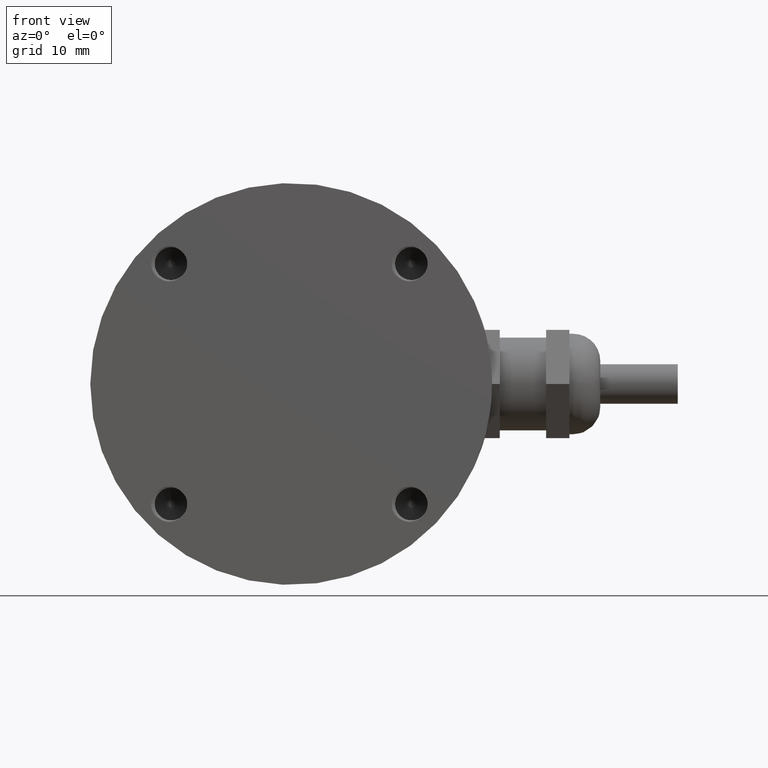
[diagram: clean part render]
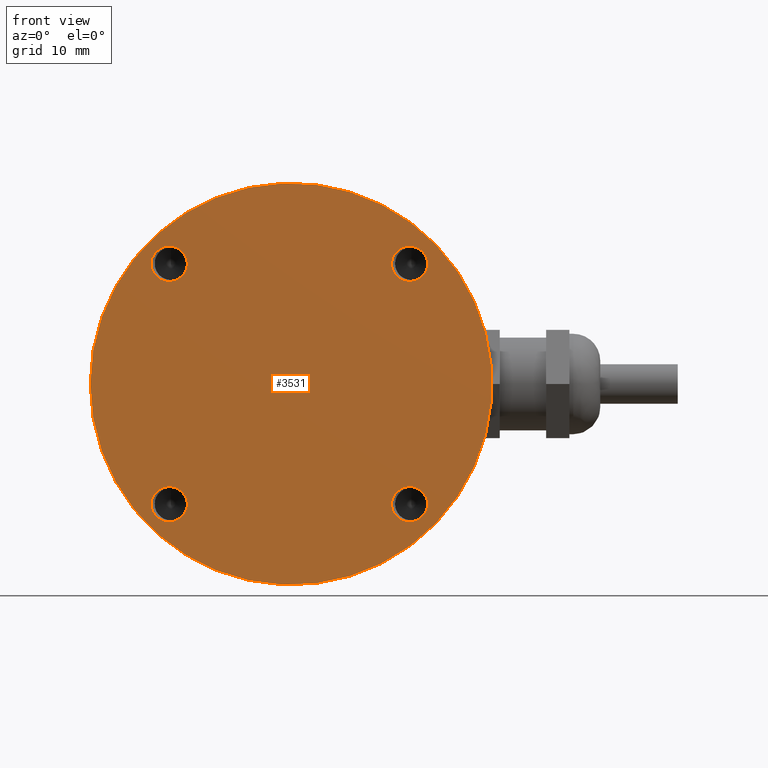
[diagram: same view with one face highlighted and labeled with its STEP entity id]
A machine part, front view. The second image highlights one B-rep face of the part: STEP entity #3531.
In plain terms, the highlighted planar face has unit normal (0, 1, 0).
Its self-contained STEP definition (entity closure, byte-faithful):
#280=B_SPLINE_CURVE_WITH_KNOTS('',3,(#9763,#9764,#9765,#9766,#9767,#9768,
#9769,#9770,#9771,#9772,#9773,#9774,#9775,#9776,#9777,#9778,#9779,#9780,
#9781,#9782,#9783,#9784,#9785,#9786,#9787,#9788,#9789,#9790,#9791,#9792,
#9793,#9794,#9795,#9796,#9797,#9798,#9799,#9800,#9801,#9802,#9803,#9804,
#9805,#9806,#9807,#9808,#9809,#9810,#9811,#9812,#9813,#9814,#9815,#9816,
#9817,#9818,#9819,#9820,#9821,#9822,#9823,#9824,#9825,#9826,#9827,#9828,
#9829,#9830,#9831,#9832,#9833,#9834,#9835,#9836,#9837,#9838,#9839,#9840,
#9841,#9842,#9843,#9844,#9845,#9846,#9847,#9848,#9849,#9850,#9851,#9852,
#9853),.UNSPECIFIED.,.F.,.F.,(4,3,3,3,3,3,3,3,3,3,3,3,3,3,3,3,3,3,3,3,3,
3,3,3,3,3,3,3,3,3,4),(0.,0.0222943111202073,0.0452079501482675,0.067368562911552,
0.077063830995489,0.0835274262694123,0.0876032083737759,0.111600942407343,
0.135976505318379,0.15760559205242,0.165980776586342,0.170580179224802,
0.174691504154017,0.199764982013314,0.222492852254544,0.246929433206619,
0.255813647653001,0.260990058207084,0.265149448905239,0.290249552252136,
0.315787129529891,0.34156467621565,0.351737786467157,0.358088359038399,
0.385053838198903,0.405277947569281,0.41191548383301,0.416554602016672,
0.443164584386041,0.465950275680416,0.472119585381889),.UNSPECIFIED.);
#282=B_SPLINE_CURVE_WITH_KNOTS('',3,(#10276,#10277,#10278,#10279,#10280,
#10281,#10282,#10283,#10284,#10285,#10286,#10287,#10288,#10289,#10290,#10291,
#10292,#10293,#10294,#10295,#10296,#10297,#10298,#10299,#10300,#10301,#10302,
#10303,#10304,#10305,#10306,#10307,#10308,#10309,#10310,#10311,#10312,#10313,
#10314,#10315,#10316,#10317,#10318,#10319,#10320,#10321,#10322,#10323,#10324,
#10325,#10326,#10327,#10328,#10329,#10330,#10331,#10332,#10333,#10334,#10335,
#10336,#10337,#10338,#10339,#10340,#10341,#10342,#10343,#10344,#10345,#10346,
#10347,#10348,#10349,#10350,#10351,#10352,#10353,#10354,#10355,#10356,#10357,
#10358,#10359,#10360,#10361,#10362,#10363,#10364,#10365,#10366),
 .UNSPECIFIED.,.F.,.F.,(4,3,3,3,3,3,3,3,3,3,3,3,3,3,3,3,3,3,3,3,3,3,3,3,
3,3,3,3,3,3,4),(0.,0.0259333166251507,0.0533398812539645,0.0773206253041767,
0.0889161022383953,0.0962695533626367,0.100446285062659,0.126449555333593,
0.152304907221798,0.175525138830264,0.186163930997357,0.191541107552447,
0.195486036485956,0.220335935070809,0.245185833655662,0.270505365968304,
0.278503786270012,0.283187430264394,0.287008799251119,0.311612188202634,
0.336258114650666,0.360518547040425,0.370727096398223,0.375370121107466,
0.399045337981612,0.41650021895034,0.42236796383116,0.427255005212159,0.45002551562153,
0.468864861856524,0.474022601254834),.UNSPECIFIED.);
#287=B_SPLINE_CURVE_WITH_KNOTS('',3,(#10969,#10970,#10971,#10972,#10973,
#10974,#10975,#10976,#10977,#10978,#10979,#10980,#10981,#10982,#10983,#10984,
#10985,#10986,#10987,#10988,#10989,#10990,#10991,#10992,#10993,#10994,#10995,
#10996,#10997,#10998,#10999,#11000,#11001,#11002,#11003,#11004,#11005,#11006,
#11007,#11008,#11009,#11010,#11011,#11012,#11013,#11014,#11015,#11016,#11017,
#11018,#11019,#11020,#11021,#11022,#11023,#11024,#11025,#11026,#11027,#11028,
#11029,#11030,#11031,#11032,#11033,#11034,#11035,#11036,#11037,#11038,#11039,
#11040,#11041,#11042,#11043,#11044,#11045,#11046,#11047,#11048,#11049,#11050,
#11051,#11052,#11053,#11054,#11055,#11056,#11057,#11058,#11059),
 .UNSPECIFIED.,.F.,.F.,(4,3,3,3,3,3,3,3,3,3,3,3,3,3,3,3,3,3,3,3,3,3,3,3,
3,3,3,3,3,3,4),(0.,0.0222943247911867,0.0452079759028594,0.0673685854468195,
0.077063852122302,0.0835274626508024,0.0876032164536431,0.111600959588429,
0.135976526089772,0.157605607630964,0.165980789355132,0.170580284683998,
0.174691516490796,0.199764992371124,0.22249285225454,0.246929426405922,
0.255813626085949,0.26099003975574,0.26514944628988,0.290249549963695,0.315787123509038,
0.341564669602044,0.351737781334822,0.358088358056182,0.385053837462236,
0.405277947016776,0.411915479580999,0.416554594827415,0.443164577144697,
0.465950275680398,0.47211958538187),.UNSPECIFIED.);
#289=B_SPLINE_CURVE_WITH_KNOTS('',3,(#11482,#11483,#11484,#11485,#11486,
#11487,#11488,#11489,#11490,#11491,#11492,#11493,#11494,#11495,#11496,#11497,
#11498,#11499,#11500,#11501,#11502,#11503,#11504,#11505,#11506,#11507,#11508,
#11509,#11510,#11511,#11512,#11513,#11514,#11515,#11516,#11517,#11518,#11519,
#11520,#11521,#11522,#11523,#11524,#11525,#11526,#11527,#11528,#11529,#11530,
#11531,#11532,#11533,#11534,#11535,#11536,#11537,#11538,#11539,#11540,#11541,
#11542,#11543,#11544,#11545,#11546,#11547,#11548,#11549,#11550,#11551,#11552,
#11553,#11554,#11555,#11556,#11557,#11558,#11559,#11560,#11561,#11562,#11563,
#11564,#11565,#11566,#11567,#11568,#11569,#11570,#11571,#11572),
 .UNSPECIFIED.,.F.,.F.,(4,3,3,3,3,3,3,3,3,3,3,3,3,3,3,3,3,3,3,3,3,3,3,3,
3,3,3,3,3,3,4),(0.,0.0259332873374859,0.0533398556272567,0.0773206028808062,
0.0889160877131421,0.0962695671699585,0.100446283535671,0.12644955362516,
0.152304914182076,0.17552514405047,0.186163935899527,0.191541088669331,
0.195486024981722,0.220335929318687,0.245185833655652,0.270505365071583,
0.27850379182538,0.283187219957951,0.287008637387445,0.311612024038219,
0.336257952514538,0.360518397164118,0.370727083886102,0.375370123396447,
0.39904535049189,0.416500228333049,0.422368004696615,0.427255037823166,
0.450025565718548,0.468864861856525,0.474022601254832),.UNSPECIFIED.);
#294=B_SPLINE_CURVE_WITH_KNOTS('',3,(#12175,#12176,#12177,#12178,#12179,
#12180,#12181,#12182,#12183,#12184,#12185,#12186,#12187,#12188,#12189,#12190,
#12191,#12192,#12193,#12194,#12195,#12196,#12197,#12198,#12199,#12200,#12201,
#12202,#12203,#12204,#12205,#12206,#12207,#12208,#12209,#12210,#12211,#12212,
#12213,#12214,#12215,#12216,#12217,#12218,#12219,#12220,#12221,#12222,#12223,
#12224,#12225,#12226,#12227,#12228,#12229,#12230,#12231,#12232,#12233,#12234,
#12235,#12236,#12237,#12238,#12239,#12240,#12241,#12242,#12243,#12244,#12245,
#12246,#12247,#12248,#12249,#12250,#12251,#12252,#12253,#12254,#12255,#12256,
#12257,#12258,#12259,#12260,#12261,#12262,#12263,#12264,#12265),
 .UNSPECIFIED.,.F.,.F.,(4,3,3,3,3,3,3,3,3,3,3,3,3,3,3,3,3,3,3,3,3,3,3,3,
3,3,3,3,3,3,4),(0.,0.0222943398813389,0.0452080043302747,0.0673686103208083,
0.0770638754416668,0.0835275028085518,0.0876032253727836,0.111600978552727,
0.135976549015857,0.157605624825528,0.165980803448253,0.17058040115689,
0.174691530120032,0.199765003815118,0.222492852254544,0.246929418899104,
0.25581360227916,0.260990019386407,0.265149443402448,0.290249547437193,
0.315787116862796,0.341564662301548,0.351737775668753,0.358088356975798,
0.38505383665195,0.405277946409064,0.411915474903763,0.416554586900803,
0.443164569159936,0.465950275680406,0.472119585381878),.UNSPECIFIED.);
#296=B_SPLINE_CURVE_WITH_KNOTS('',3,(#12688,#12689,#12690,#12691,#12692,
#12693,#12694,#12695,#12696,#12697,#12698,#12699,#12700,#12701,#12702,#12703,
#12704,#12705,#12706,#12707,#12708,#12709,#12710,#12711,#12712,#12713,#12714,
#12715,#12716,#12717,#12718,#12719,#12720,#12721,#12722,#12723,#12724,#12725,
#12726,#12727,#12728,#12729,#12730,#12731,#12732,#12733,#12734,#12735,#12736,
#12737,#12738,#12739,#12740,#12741,#12742,#12743,#12744,#12745,#12746,#12747,
#12748,#12749,#12750,#12751,#12752,#12753,#12754,#12755,#12756,#12757,#12758,
#12759,#12760,#12761,#12762,#12763,#12764,#12765,#12766,#12767,#12768,#12769,
#12770,#12771,#12772,#12773,#12774,#12775,#12776,#12777,#12778),
 .UNSPECIFIED.,.F.,.F.,(4,3,3,3,3,3,3,3,3,3,3,3,3,3,3,3,3,3,3,3,3,3,3,3,
3,3,3,3,3,3,4),(0.,0.0259332959012752,0.0533398631205719,0.0773206094374564,
0.0889160919604352,0.0962695631326717,0.100446283976932,0.126449554120173,
0.152304912143222,0.175525142521329,0.186163934464759,0.191541094180988,
0.195486028341698,0.220335930998673,0.245185833655648,0.270505365334119,
0.278503790202085,0.28318728144686,0.287008684702881,0.3116120720263,0.336257999910418,
0.360518440977073,0.370727087542313,0.375370122731634,0.399045346839493,
0.416500225593748,0.422367992767223,0.427255028312798,0.45002555109637,
0.468864861856513,0.474022601254821),.UNSPECIFIED.);
#301=B_SPLINE_CURVE_WITH_KNOTS('',3,(#13381,#13382,#13383,#13384,#13385,
#13386,#13387,#13388,#13389,#13390,#13391,#13392,#13393,#13394,#13395,#13396,
#13397,#13398,#13399,#13400,#13401,#13402,#13403,#13404,#13405,#13406,#13407,
#13408,#13409,#13410,#13411,#13412,#13413,#13414,#13415,#13416,#13417,#13418,
#13419,#13420,#13421,#13422,#13423,#13424,#13425,#13426,#13427,#13428,#13429,
#13430,#13431,#13432,#13433,#13434,#13435,#13436,#13437,#13438,#13439,#13440,
#13441,#13442,#13443,#13444,#13445,#13446,#13447,#13448,#13449,#13450,#13451,
#13452,#13453,#13454,#13455,#13456,#13457,#13458,#13459,#13460,#13461,#13462,
#13463,#13464,#13465,#13466,#13467,#13468,#13469,#13470,#13471),
 .UNSPECIFIED.,.F.,.F.,(4,3,3,3,3,3,3,3,3,3,3,3,3,3,3,3,3,3,3,3,3,3,3,3,
3,3,3,3,3,3,4),(0.,0.0222942988815464,0.0452079270912462,0.0673685427366583,
0.0770638120815261,0.0835273936989086,0.087603201140526,0.111600927025894,
0.135976486721782,0.157605578104972,0.165980765154514,0.17058008478344,
0.174691493109489,0.199764972739453,0.222492852254543,0.246929439293926,
0.255813666957615,0.260990074715381,0.265149451245319,0.290249554299706,
0.315787134918674,0.341564682135224,0.351737791061162,0.358088359915178,
0.385053838856486,0.405277948062468,0.41191548761492,0.416554608424051,
0.443164590839624,0.465950275680412,0.472119585381883),.UNSPECIFIED.);
#303=B_SPLINE_CURVE_WITH_KNOTS('',3,(#13894,#13895,#13896,#13897,#13898,
#13899,#13900,#13901,#13902,#13903,#13904,#13905,#13906,#13907,#13908,#13909,
#13910,#13911,#13912,#13913,#13914,#13915,#13916,#13917,#13918,#13919,#13920,
#13921,#13922,#13923,#13924,#13925,#13926,#13927,#13928,#13929,#13930,#13931,
#13932,#13933,#13934,#13935,#13936,#13937,#13938,#13939,#13940,#13941,#13942,
#13943,#13944,#13945,#13946,#13947,#13948,#13949,#13950,#13951,#13952,#13953,
#13954,#13955,#13956,#13957,#13958,#13959,#13960,#13961,#13962,#13963,#13964,
#13965,#13966,#13967,#13968,#13969,#13970,#13971,#13972,#13973,#13974,#13975,
#13976,#13977,#13978,#13979,#13980,#13981,#13982,#13983,#13984),
 .UNSPECIFIED.,.F.,.F.,(4,3,3,3,3,3,3,3,3,3,3,3,3,3,3,3,3,3,3,3,3,3,3,3,
3,3,3,3,3,3,4),(0.,0.0259333056645179,0.0533398716634107,0.0773206169124418,
0.0889160968024158,0.0962695585303896,0.100446284486719,0.126449554690237,
0.152304909822877,0.175525140781073,0.186163932830775,0.191541100485391,
0.195486032171726,0.220335932913693,0.24518583365566,0.270505365631679,
0.278503788347211,0.283187351683521,0.287008738764509,0.311612126856115,
0.336258054063156,0.36051849104092,0.370727091725953,0.375370121968739,
0.399045342669558,0.416500222466299,0.422367979138966,0.427255017426093,
0.450025534381191,0.468864861856523,0.474022601254832),.UNSPECIFIED.);
#320=FACE_BOUND('',#785,.T.);
#321=FACE_BOUND('',#786,.T.);
#322=FACE_BOUND('',#787,.T.);
#323=FACE_BOUND('',#788,.T.);
#350=PLANE('',#3796);
#563=FACE_OUTER_BOUND('',#784,.T.);
#784=EDGE_LOOP('',(#3130));
#785=EDGE_LOOP('',(#3131,#3132,#3133,#3134));
#786=EDGE_LOOP('',(#3135,#3136,#3137,#3138));
#787=EDGE_LOOP('',(#3139,#3140,#3141,#3142));
#788=EDGE_LOOP('',(#3143,#3144,#3145,#3146));
#1210=CIRCLE('',#3633,2.117);
#1212=CIRCLE('',#3650,2.117);
#1214=CIRCLE('',#3667,2.117);
#1216=CIRCLE('',#3684,2.117);
#1218=CIRCLE('',#3701,2.56);
#1220=CIRCLE('',#3718,2.56);
#1222=CIRCLE('',#3735,2.56);
#1224=CIRCLE('',#3752,2.56);
#1243=CIRCLE('',#3794,26.);
#1402=VERTEX_POINT('',#6090);
#1403=VERTEX_POINT('',#6104);
#1421=VERTEX_POINT('',#6681);
#1422=VERTEX_POINT('',#6695);
#1440=VERTEX_POINT('',#7272);
#1441=VERTEX_POINT('',#7286);
#1459=VERTEX_POINT('',#7863);
#1460=VERTEX_POINT('',#7877);
#1481=VERTEX_POINT('',#8186);
#1482=VERTEX_POINT('',#8192);
#1503=VERTEX_POINT('',#8487);
#1504=VERTEX_POINT('',#8493);
#1525=VERTEX_POINT('',#8788);
#1526=VERTEX_POINT('',#8794);
#1547=VERTEX_POINT('',#9089);
#1548=VERTEX_POINT('',#9095);
#1571=VERTEX_POINT('',#14015);
#1766=EDGE_CURVE('',#1403,#1402,#1210,.F.);
#1804=EDGE_CURVE('',#1422,#1421,#1212,.F.);
#1842=EDGE_CURVE('',#1441,#1440,#1214,.F.);
#1880=EDGE_CURVE('',#1460,#1459,#1216,.F.);
#1919=EDGE_CURVE('',#1482,#1481,#1218,.T.);
#1958=EDGE_CURVE('',#1504,#1503,#1220,.T.);
#1997=EDGE_CURVE('',#1526,#1525,#1222,.T.);
#2036=EDGE_CURVE('',#1548,#1547,#1224,.T.);
#2055=EDGE_CURVE('',#1402,#1548,#280,.T.);
#2057=EDGE_CURVE('',#1547,#1403,#282,.T.);
#2064=EDGE_CURVE('',#1440,#1526,#287,.T.);
#2066=EDGE_CURVE('',#1525,#1441,#289,.T.);
#2073=EDGE_CURVE('',#1421,#1504,#294,.T.);
#2075=EDGE_CURVE('',#1503,#1422,#296,.T.);
#2082=EDGE_CURVE('',#1459,#1482,#301,.T.);
#2084=EDGE_CURVE('',#1481,#1460,#303,.T.);
#2096=EDGE_CURVE('',#1571,#1571,#1243,.T.);
#3130=ORIENTED_EDGE('',*,*,#2096,.F.);
#3131=ORIENTED_EDGE('',*,*,#2057,.T.);
#3132=ORIENTED_EDGE('',*,*,#1766,.T.);
#3133=ORIENTED_EDGE('',*,*,#2055,.T.);
#3134=ORIENTED_EDGE('',*,*,#2036,.T.);
#3135=ORIENTED_EDGE('',*,*,#2066,.T.);
#3136=ORIENTED_EDGE('',*,*,#1842,.T.);
#3137=ORIENTED_EDGE('',*,*,#2064,.T.);
#3138=ORIENTED_EDGE('',*,*,#1997,.T.);
#3139=ORIENTED_EDGE('',*,*,#2075,.T.);
#3140=ORIENTED_EDGE('',*,*,#1804,.T.);
#3141=ORIENTED_EDGE('',*,*,#2073,.T.);
#3142=ORIENTED_EDGE('',*,*,#1958,.T.);
#3143=ORIENTED_EDGE('',*,*,#2084,.T.);
#3144=ORIENTED_EDGE('',*,*,#1880,.T.);
#3145=ORIENTED_EDGE('',*,*,#2082,.T.);
#3146=ORIENTED_EDGE('',*,*,#1919,.T.);
#3531=ADVANCED_FACE('',(#563,#320,#321,#322,#323),#350,.F.);
#3633=AXIS2_PLACEMENT_3D('',#6105,#4094,#4095);
#3650=AXIS2_PLACEMENT_3D('',#6696,#4138,#4139);
#3667=AXIS2_PLACEMENT_3D('',#7287,#4182,#4183);
#3684=AXIS2_PLACEMENT_3D('',#7878,#4226,#4227);
#3701=AXIS2_PLACEMENT_3D('',#8193,#4271,#4272);
#3718=AXIS2_PLACEMENT_3D('',#8494,#4316,#4317);
#3735=AXIS2_PLACEMENT_3D('',#8795,#4361,#4362);
#3752=AXIS2_PLACEMENT_3D('',#9096,#4406,#4407);
#3794=AXIS2_PLACEMENT_3D('',#14017,#4499,#4500);
#3796=AXIS2_PLACEMENT_3D('',#14019,#4503,#4504);
#4094=DIRECTION('center_axis',(0.,-1.,0.));
#4095=DIRECTION('ref_axis',(0.,0.,-1.));
#4138=DIRECTION('center_axis',(0.,-1.,0.));
#4139=DIRECTION('ref_axis',(0.,0.,-1.));
#4182=DIRECTION('center_axis',(0.,-1.,0.));
#4183=DIRECTION('ref_axis',(0.,0.,-1.));
#4226=DIRECTION('center_axis',(0.,-1.,0.));
#4227=DIRECTION('ref_axis',(0.,0.,-1.));
#4271=DIRECTION('center_axis',(0.,1.,0.));
#4272=DIRECTION('ref_axis',(-9.19403442267709E-14,0.,-1.));
#4316=DIRECTION('center_axis',(0.,1.,0.));
#4317=DIRECTION('ref_axis',(-9.19403442267709E-14,0.,-1.));
#4361=DIRECTION('center_axis',(0.,1.,0.));
#4362=DIRECTION('ref_axis',(-9.02056207507939E-14,0.,-1.));
#4406=DIRECTION('center_axis',(0.,1.,0.));
#4407=DIRECTION('ref_axis',(-9.19403442267707E-14,0.,-1.));
#4499=DIRECTION('center_axis',(0.,1.,0.));
#4500=DIRECTION('ref_axis',(1.,0.,0.));
#4503=DIRECTION('center_axis',(0.,1.,0.));
#4504=DIRECTION('ref_axis',(1.,0.,0.));
#6090=CARTESIAN_POINT('',(16.9192614153614,0.,-17.1762748804928));
#6104=CARTESIAN_POINT('',(16.9192614153614,2.77555756156289E-16,-13.9364234917153));
#6105=CARTESIAN_POINT('Origin',(15.556349186104,0.,-15.5563491861041));
#6681=CARTESIAN_POINT('',(-14.1934369568467,0.,13.9364234917153));
#6695=CARTESIAN_POINT('',(-14.1934369568467,0.,17.1762748804928));
#6696=CARTESIAN_POINT('Origin',(-15.556349186104,0.,15.556349186104));
#7272=CARTESIAN_POINT('',(16.9192614153614,0.,13.9364234917153));
#7286=CARTESIAN_POINT('',(16.9192614153614,0.,17.1762748804928));
#7287=CARTESIAN_POINT('Origin',(15.556349186104,0.,15.556349186104));
#7863=CARTESIAN_POINT('',(-14.1934369568467,0.,-17.1762748804928));
#7877=CARTESIAN_POINT('',(-14.1934369568467,0.,-13.9364234917153));
#7878=CARTESIAN_POINT('Origin',(-15.556349186104,0.,-15.556349186104));
#8186=CARTESIAN_POINT('',(-18.0293440885225,0.,-14.8946119175355));
#8192=CARTESIAN_POINT('',(-18.0293440885225,0.,-16.2180864546725));
#8193=CARTESIAN_POINT('Origin',(-15.556349186104,0.,-15.556349186104));
#8487=CARTESIAN_POINT('',(-18.0293440885225,0.,16.2180864546726));
#8493=CARTESIAN_POINT('',(-18.0293440885225,0.,14.8946119175355));
#8494=CARTESIAN_POINT('Origin',(-15.556349186104,0.,15.556349186104));
#8788=CARTESIAN_POINT('',(13.0833542836856,0.,16.2180864546725));
#8794=CARTESIAN_POINT('',(13.0833542836856,0.,14.8946119175355));
#8795=CARTESIAN_POINT('Origin',(15.556349186104,0.,15.556349186104));
#9089=CARTESIAN_POINT('',(13.0833542836856,0.,-14.8946119175356));
#9095=CARTESIAN_POINT('',(13.0833542836856,0.,-16.2180864546726));
#9096=CARTESIAN_POINT('Origin',(15.556349186104,0.,-15.5563491861041));
#9763=CARTESIAN_POINT('Ctrl Pts',(16.9192614153614,-8.32667268468867E-16,
-17.1762748804928));
#9764=CARTESIAN_POINT('Ctrl Pts',(16.8676592899005,-8.21116494957756E-16,
-17.2297524112507));
#9765=CARTESIAN_POINT('Ctrl Pts',(16.8132077868796,-4.76921878931044E-16,
-17.2801012268473));
#9766=CARTESIAN_POINT('Ctrl Pts',(16.7562737455758,-5.08273978461204E-16,
-17.3273262793312));
#9767=CARTESIAN_POINT('Ctrl Pts',(16.6977580971752,-5.40497027988614E-16,
-17.3758632267105));
#9768=CARTESIAN_POINT('Ctrl Pts',(16.6366195947249,-7.11091615209364E-16,
-17.4211008976383));
#9769=CARTESIAN_POINT('Ctrl Pts',(16.5732088958783,-7.80625564189563E-16,
-17.4630175985344));
#9770=CARTESIAN_POINT('Ctrl Pts',(16.5118821052944,-8.47874372437138E-16,
-17.5035567628171));
#9771=CARTESIAN_POINT('Ctrl Pts',(16.448429172086,-1.11192108256168E-15,
-17.5409897975761));
#9772=CARTESIAN_POINT('Ctrl Pts',(16.3831338140257,-1.18655085756814E-15,
-17.5752681187327));
#9773=CARTESIAN_POINT('Ctrl Pts',(16.3545670948743,-1.21920138413346E-15,
-17.5902648842387));
#9774=CARTESIAN_POINT('Ctrl Pts',(16.3256473558526,-7.91155656040088E-16,
-17.604657423307));
#9775=CARTESIAN_POINT('Ctrl Pts',(16.2963968461845,-7.97972798949331E-16,
-17.6184397242529));
#9776=CARTESIAN_POINT('Ctrl Pts',(16.2768962553382,-8.02517619402811E-16,
-17.6276280431819));
#9777=CARTESIAN_POINT('Ctrl Pts',(16.2572486340167,-7.23803963751156E-16,
-17.6365451131711));
#9778=CARTESIAN_POINT('Ctrl Pts',(16.2374603965351,-7.42461647718073E-16,
-17.6451888370265));
#9779=CARTESIAN_POINT('Ctrl Pts',(16.2249824271101,-7.54226718270684E-16,
-17.6506393538847));
#9780=CARTESIAN_POINT('Ctrl Pts',(16.2124563716292,-8.59367004419518E-16,
-17.6559777191058));
#9781=CARTESIAN_POINT('Ctrl Pts',(16.1998894025204,-8.60422844084496E-16,
-17.6612016384798));
#9782=CARTESIAN_POINT('Ctrl Pts',(16.1258965406449,-8.66639506019172E-16,
-17.6919594720786));
#9783=CARTESIAN_POINT('Ctrl Pts',(16.0504313201827,-4.78286091591003E-16,
-17.7187777286481));
#9784=CARTESIAN_POINT('Ctrl Pts',(15.9738732807202,-4.9960036108132E-16,
-17.7416318129198));
#9785=CARTESIAN_POINT('Ctrl Pts',(15.8961098841989,-5.21250210026946E-16,
-17.7648457200396));
#9786=CARTESIAN_POINT('Ctrl Pts',(15.8172181667172,-1.03389310849287E-15,
-17.7839701424559));
#9787=CARTESIAN_POINT('Ctrl Pts',(15.7375611686813,-1.12410081243297E-15,
-17.7989384943831));
#9788=CARTESIAN_POINT('Ctrl Pts',(15.6668793909607,-1.20414451274546E-15,
-17.8122203120495));
#9789=CARTESIAN_POINT('Ctrl Pts',(15.5955941435031,-5.16679896901634E-16,
-17.8222294727975));
#9790=CARTESIAN_POINT('Ctrl Pts',(15.5239449268404,-5.13478148889135E-16,
-17.8288884651678));
#9791=CARTESIAN_POINT('Ctrl Pts',(15.4962010179717,-5.12238372528462E-16,
-17.8314669508245));
#9792=CARTESIAN_POINT('Ctrl Pts',(15.4684024401151,-7.37002778015255E-16,
-17.8335427888166));
#9793=CARTESIAN_POINT('Ctrl Pts',(15.4405628356448,-7.49400541621981E-16,
-17.8351101850178));
#9794=CARTESIAN_POINT('Ctrl Pts',(15.4252741515882,-7.56209025233635E-16,
-17.8359709524664));
#9795=CARTESIAN_POINT('Ctrl Pts',(15.4099730928124,-4.65286117540405E-16,
-17.8366783668391));
#9796=CARTESIAN_POINT('Ctrl Pts',(15.3946619121074,-4.57966997657877E-16,
-17.8372313703905));
#9797=CARTESIAN_POINT('Ctrl Pts',(15.3809755176174,-4.51424565433891E-16,
-17.8377256905155));
#9798=CARTESIAN_POINT('Ctrl Pts',(15.3672886390441,-8.14833591409341E-16,
-17.8380963159518));
#9799=CARTESIAN_POINT('Ctrl Pts',(15.3536096254941,-8.18789480661053E-16,
-17.8383428571959));
#9800=CARTESIAN_POINT('Ctrl Pts',(15.2701862889084,-8.42915012764298E-16,
-17.839846422721));
#9801=CARTESIAN_POINT('Ctrl Pts',(15.1869801009082,-8.13262838581285E-16,
-17.8367415203234));
#9802=CARTESIAN_POINT('Ctrl Pts',(15.1043704666492,-8.04911692853238E-16,
-17.8289689857598));
#9803=CARTESIAN_POINT('Ctrl Pts',(15.0294889101834,-7.97341791400487E-16,
-17.8219235667718));
#9804=CARTESIAN_POINT('Ctrl Pts',(14.9550966077068,-7.97338872555978E-16,
-17.8110426493149));
#9805=CARTESIAN_POINT('Ctrl Pts',(14.8814650049198,-9.15933995315754E-16,
-17.7962468614729));
#9806=CARTESIAN_POINT('Ctrl Pts',(14.8022976829034,-1.01568967733584E-15,
-17.7803387071447));
#9807=CARTESIAN_POINT('Ctrl Pts',(14.724008921695,-9.96555608758512E-16,
-17.7599058749907));
#9808=CARTESIAN_POINT('Ctrl Pts',(14.646827110788,-1.08246744900953E-15,
-17.7352134809441));
#9809=CARTESIAN_POINT('Ctrl Pts',(14.6187667302953,-1.11370173721745E-15,
-17.7262362625543));
#9810=CARTESIAN_POINT('Ctrl Pts',(14.5908527168142,-1.20184719020065E-15,
-17.7166955256691));
#9811=CARTESIAN_POINT('Ctrl Pts',(14.5630963301935,-1.22124532708767E-15,
-17.7066023560753));
#9812=CARTESIAN_POINT('Ctrl Pts',(14.5469239996499,-1.23254770177905E-15,
-17.7007215446738));
#9813=CARTESIAN_POINT('Ctrl Pts',(14.5308051847599,-8.84730237590892E-16,
-17.6946531753138));
#9814=CARTESIAN_POINT('Ctrl Pts',(14.5147421515156,-8.88178419700125E-16,
-17.6883993117413));
#9815=CARTESIAN_POINT('Ctrl Pts',(14.501835054916,-8.90949130493027E-16,
-17.6833741573994));
#9816=CARTESIAN_POINT('Ctrl Pts',(14.488971185424,-1.09139529489777E-15,
-17.6782320028409));
#9817=CARTESIAN_POINT('Ctrl Pts',(14.4761574287518,-1.08246744900953E-15,
-17.6729767813867));
#9818=CARTESIAN_POINT('Ctrl Pts',(14.398832012585,-1.02859180454088E-15,
-17.6412638187956));
#9819=CARTESIAN_POINT('Ctrl Pts',(14.3232648438826,-6.55804883093921E-16,
-17.6054121287731));
#9820=CARTESIAN_POINT('Ctrl Pts',(14.2496916257285,-6.93889390390723E-16,
-17.5657568458249));
#9821=CARTESIAN_POINT('Ctrl Pts',(14.1748360875573,-7.3263767898283E-16,
-17.525410404268));
#9822=CARTESIAN_POINT('Ctrl Pts',(14.1020438313525,-8.86636508819283E-16,
-17.4811262721543));
#9823=CARTESIAN_POINT('Ctrl Pts',(14.031568746277,-9.15933995315754E-16,
-17.4332014458634));
#9824=CARTESIAN_POINT('Ctrl Pts',(13.9604314267123,-9.45506782026263E-16,
-17.3848262835023));
#9825=CARTESIAN_POINT('Ctrl Pts',(13.8916541724747,-7.76111445747602E-16,
-17.3327412128485));
#9826=CARTESIAN_POINT('Ctrl Pts',(13.8255162385146,-7.49400541621981E-16,
-17.2772015410258));
#9827=CARTESIAN_POINT('Ctrl Pts',(13.7994148991519,-7.38859081804259E-16,
-17.2552828064125));
#9828=CARTESIAN_POINT('Ctrl Pts',(13.7737248986512,-9.80753167481628E-16,
-17.2328255155654));
#9829=CARTESIAN_POINT('Ctrl Pts',(13.7484646304751,-9.99200722162641E-16,
-17.2098434958098));
#9830=CARTESIAN_POINT('Ctrl Pts',(13.7326958869684,-1.01071662357995E-15,
-17.1954969507825));
#9831=CARTESIAN_POINT('Ctrl Pts',(13.7170903117647,-9.64394594658866E-16,
-17.1809416073666));
#9832=CARTESIAN_POINT('Ctrl Pts',(13.7016766986642,-9.71445146547012E-16,
-17.1662042633471));
#9833=CARTESIAN_POINT('Ctrl Pts',(13.6362281964724,-1.00138284238105E-15,
-17.1036273006276));
#9834=CARTESIAN_POINT('Ctrl Pts',(13.5741692669088,-1.09269950883077E-15,
-17.0377134236591));
#9835=CARTESIAN_POINT('Ctrl Pts',(13.5158001760282,-1.19348975147204E-15,
-16.9687827987107));
#9836=CARTESIAN_POINT('Ctrl Pts',(13.4720233578677,-1.269082433453E-15,
-16.9170848299994));
#9837=CARTESIAN_POINT('Ctrl Pts',(13.4303223426082,-1.15001688554354E-15,
-16.8636887022279));
#9838=CARTESIAN_POINT('Ctrl Pts',(13.3908352592697,-1.16573417585641E-15,
-16.8087118220001));
#9839=CARTESIAN_POINT('Ctrl Pts',(13.3778756306004,-1.17089257776716E-15,
-16.7906684545769));
#9840=CARTESIAN_POINT('Ctrl Pts',(13.365154571362,-9.23303140902531E-16,
-16.7724547079838));
#9841=CARTESIAN_POINT('Ctrl Pts',(13.3526772691913,-9.15933995315754E-16,
-16.7540744287055));
#9842=CARTESIAN_POINT('Ctrl Pts',(13.3439566118445,-9.10783539494296E-16,
-16.7412280525152));
#9843=CARTESIAN_POINT('Ctrl Pts',(13.335356185128,-1.35172456563126E-15,
-16.7283019223977));
#9844=CARTESIAN_POINT('Ctrl Pts',(13.3268825541204,-1.30451205393456E-15,
-16.7153051025747));
#9845=CARTESIAN_POINT('Ctrl Pts',(13.2782778058065,-1.03370108208058E-15,
-16.6407553427588));
#9846=CARTESIAN_POINT('Ctrl Pts',(13.2337947429191,-7.29779491159588E-16,
-16.5638134777546));
#9847=CARTESIAN_POINT('Ctrl Pts',(13.1937275336043,-6.10622663543836E-16,
-16.4847567347721));
#9848=CARTESIAN_POINT('Ctrl Pts',(13.1594186396786,-5.08590627145539E-16,
-16.4170617428951));
#9849=CARTESIAN_POINT('Ctrl Pts',(13.1283476738076,1.66812386874713E-16,
-16.3478151467041));
#9850=CARTESIAN_POINT('Ctrl Pts',(13.1007221077856,2.22044604925031E-16,
-16.2771708251905));
#9851=CARTESIAN_POINT('Ctrl Pts',(13.0932423842053,2.37227241374869E-16,
-16.2580436153799));
#9852=CARTESIAN_POINT('Ctrl Pts',(13.0860153742786,2.71962153253717E-16,
-16.2388138512607));
#9853=CARTESIAN_POINT('Ctrl Pts',(13.0790397275897,2.77555756156289E-16,
-16.2194860634214));
#10276=CARTESIAN_POINT('Ctrl Pts',(13.0833542836856,-1.66533453693773E-15,
-14.8946119175356));
#10277=CARTESIAN_POINT('Ctrl Pts',(13.1127840689569,-1.64661988954335E-15,
-14.8133314150437));
#10278=CARTESIAN_POINT('Ctrl Pts',(13.146570824091,-1.6621984572502E-15,
-14.7339228701117));
#10279=CARTESIAN_POINT('Ctrl Pts',(13.1844020253045,-1.64972202565394E-15,
-14.6565864882495));
#10280=CARTESIAN_POINT('Ctrl Pts',(13.2243823824656,-1.63653681938734E-15,
-14.5748566972511));
#10281=CARTESIAN_POINT('Ctrl Pts',(13.2688802099016,-1.35848374878198E-15,
-14.4954402369911));
#10282=CARTESIAN_POINT('Ctrl Pts',(13.3175775169757,-1.27328703136698E-15,
-14.4186057622794));
#10283=CARTESIAN_POINT('Ctrl Pts',(13.3601876606655,-1.19873990362885E-15,
-14.3513755969068));
#10284=CARTESIAN_POINT('Ctrl Pts',(13.4060142042421,-1.69485927057414E-15,
-14.2861224647225));
#10285=CARTESIAN_POINT('Ctrl Pts',(13.454868378018,-1.61676227961038E-15,
-14.2230536075109));
#10286=CARTESIAN_POINT('Ctrl Pts',(13.4784909747136,-1.578999820887E-15,
-14.1925577447665));
#10287=CARTESIAN_POINT('Ctrl Pts',(13.5028217314049,-1.65731842838205E-15,
-14.162572991791));
#10288=CARTESIAN_POINT('Ctrl Pts',(13.52784067037,-1.63757896132211E-15,
-14.1331253182114));
#10289=CARTESIAN_POINT('Ctrl Pts',(13.5437068176535,-1.62506087284094E-15,
-14.1144506203428));
#10290=CARTESIAN_POINT('Ctrl Pts',(13.55984974433,-1.54016231430912E-15,
-14.095991952033));
#10291=CARTESIAN_POINT('Ctrl Pts',(13.5762644931062,-1.5404344466674E-15,
-14.0777563180911));
#10292=CARTESIAN_POINT('Ctrl Pts',(13.5855880067059,-1.54058901679077E-15,
-14.0673985487841));
#10293=CARTESIAN_POINT('Ctrl Pts',(13.5950004749111,-1.33917300015877E-15,
-14.0571114799866));
#10294=CARTESIAN_POINT('Ctrl Pts',(13.6044893552787,-1.35308431126191E-15,
-14.0469086866764));
#10295=CARTESIAN_POINT('Ctrl Pts',(13.6635647133549,-1.43969259937294E-15,
-13.9833886880225));
#10296=CARTESIAN_POINT('Ctrl Pts',(13.725691251798,-1.91903320561989E-15,
-13.9230275463607));
#10297=CARTESIAN_POINT('Ctrl Pts',(13.7905915665614,-1.81799020282369E-15,
-13.8660560404854));
#10298=CARTESIAN_POINT('Ctrl Pts',(13.8551226989297,-1.71752197840745E-15,
-13.809408614348));
#10299=CARTESIAN_POINT('Ctrl Pts',(13.9223969642193,-1.52988036862113E-15,
-13.7561118540293));
#10300=CARTESIAN_POINT('Ctrl Pts',(13.992168623341,-1.42941214420489E-15,
-13.7064360835075));
#10301=CARTESIAN_POINT('Ctrl Pts',(14.0548293092801,-1.33918341901392E-15,
-13.6618231576486));
#10302=CARTESIAN_POINT('Ctrl Pts',(14.1195050027502,-1.57210068205122E-15,
-13.6201310376781));
#10303=CARTESIAN_POINT('Ctrl Pts',(14.1860283906582,-1.52655665885959E-15,
-13.5815908257456));
#10304=CARTESIAN_POINT('Ctrl Pts',(14.2165073501335,-1.5056897956276E-15,
-13.5639328922788));
#10305=CARTESIAN_POINT('Ctrl Pts',(14.2473742709991,-1.68531360832798E-15,
-13.5469370972023));
#10306=CARTESIAN_POINT('Ctrl Pts',(14.2786133631833,-1.70696790036118E-15,
-13.5306283020493));
#10307=CARTESIAN_POINT('Ctrl Pts',(14.2944025722831,-1.71791265326256E-15,
-13.5223853295802));
#10308=CARTESIAN_POINT('Ctrl Pts',(14.3102868579172,-1.84475080090283E-15,
-13.5143178859167));
#10309=CARTESIAN_POINT('Ctrl Pts',(14.3262641841015,-1.84574577843932E-15,
-13.5064293533662));
#10310=CARTESIAN_POINT('Ctrl Pts',(14.3379858405691,-1.84647573692807E-15,
-13.5006419852219));
#10311=CARTESIAN_POINT('Ctrl Pts',(14.3497573125194,-1.26696645804811E-15,
-13.494951130098));
#10312=CARTESIAN_POINT('Ctrl Pts',(14.3615652501121,-1.26287869051112E-15,
-13.4893638276268));
#10313=CARTESIAN_POINT('Ctrl Pts',(14.4359458173212,-1.23712902291385E-15,
-13.4541682887178));
#10314=CARTESIAN_POINT('Ctrl Pts',(14.5118977948969,-2.28331732609293E-15,
-13.423014913813));
#10315=CARTESIAN_POINT('Ctrl Pts',(14.5891984083937,-2.12330153459561E-15,
-13.3961430691624));
#10316=CARTESIAN_POINT('Ctrl Pts',(14.6664990218904,-1.96328574309829E-15,
-13.3692712245117));
#10317=CARTESIAN_POINT('Ctrl Pts',(14.745148971663,-1.68188789467884E-15,
-13.3466804547558));
#10318=CARTESIAN_POINT('Ctrl Pts',(14.8249350842957,-1.66533453693773E-15,
-13.3286624046695));
#10319=CARTESIAN_POINT('Ctrl Pts',(14.906229060205,-1.62164977559924E-15,
-13.3103038347215));
#10320=CARTESIAN_POINT('Ctrl Pts',(14.9887037530346,-1.61286192514476E-15,
-13.2966930642198));
#10321=CARTESIAN_POINT('Ctrl Pts',(15.0719683635281,-1.66533453693773E-15,
-13.2877561947667));
#10322=CARTESIAN_POINT('Ctrl Pts',(15.0982715883572,-1.68191059364629E-15,
-13.2849330447501));
#10323=CARTESIAN_POINT('Ctrl Pts',(15.1246535418757,-1.73386973272572E-15,
-13.2825766916689));
#10324=CARTESIAN_POINT('Ctrl Pts',(15.1511015469514,-1.72084568816899E-15,
-13.2806858234611));
#10325=CARTESIAN_POINT('Ctrl Pts',(15.166588735104,-1.71321918371315E-15,
-13.2795785856328));
#10326=CARTESIAN_POINT('Ctrl Pts',(15.1820985678281,-1.4035517786333E-15,
-13.2786309684419));
#10327=CARTESIAN_POINT('Ctrl Pts',(15.1976284603093,-1.38777878078145E-15,
-13.2778427820864));
#10328=CARTESIAN_POINT('Ctrl Pts',(15.2102992460407,-1.37490964621634E-15,
-13.2771997035564));
#10329=CARTESIAN_POINT('Ctrl Pts',(15.2229823891465,-1.74916694002924E-15,
-13.2766628784899));
#10330=CARTESIAN_POINT('Ctrl Pts',(15.2356637804158,-1.74860126378462E-15,
-13.2762323979104));
#10331=CARTESIAN_POINT('Ctrl Pts',(15.3173112745281,-1.74495923059825E-15,
-13.2734608044919));
#10332=CARTESIAN_POINT('Ctrl Pts',(15.3990268951045,-1.36087400374062E-15,
-13.2750853345467));
#10333=CARTESIAN_POINT('Ctrl Pts',(15.4804494706225,-1.47104550762833E-15,
-13.2809776544701));
#10334=CARTESIAN_POINT('Ctrl Pts',(15.5620128199392,-1.58140749015182E-15,
-13.2868801617924));
#10335=CARTESIAN_POINT('Ctrl Pts',(15.6432831343795,-1.62076837570881E-15,
-13.2970656124797));
#10336=CARTESIAN_POINT('Ctrl Pts',(15.7238853882386,-1.60982338570648E-15,
-13.3114558626518));
#10337=CARTESIAN_POINT('Ctrl Pts',(15.803226918951,-1.59904958945589E-15,
-13.3256210307621));
#10338=CARTESIAN_POINT('Ctrl Pts',(15.8819219999282,-1.71366315733527E-15,
-13.3438609623203));
#10339=CARTESIAN_POINT('Ctrl Pts',(15.9595873340212,-1.72084568816899E-15,
-13.3661438045886));
#10340=CARTESIAN_POINT('Ctrl Pts',(15.9922681363969,-1.72386802591434E-15,
-13.3755202036352));
#10341=CARTESIAN_POINT('Ctrl Pts',(16.0247662182036,-1.95440080332842E-15,
-13.3856129412788));
#10342=CARTESIAN_POINT('Ctrl Pts',(16.0570510726638,-1.97064586870965E-15,
-13.3964216568558));
#10343=CARTESIAN_POINT('Ctrl Pts',(16.0717347825366,-1.9780344052514E-15,
-13.4013376475358));
#10344=CARTESIAN_POINT('Ctrl Pts',(16.0863753817102,-1.53136779893329E-15,
-13.4064022213341));
#10345=CARTESIAN_POINT('Ctrl Pts',(16.1009537581503,-1.52655665885959E-15,
-13.4116093563468));
#10346=CARTESIAN_POINT('Ctrl Pts',(16.1752902619395,-1.50202420603203E-15,
-13.438161024373));
#10347=CARTESIAN_POINT('Ctrl Pts',(16.2481102336466,-2.204112160058E-15,
-13.4684483148873));
#10348=CARTESIAN_POINT('Ctrl Pts',(16.3190576136382,-2.27595720048157E-15,
-13.5024168826869));
#10349=CARTESIAN_POINT('Ctrl Pts',(16.3713645504397,-2.32892594984734E-15,
-13.5274606789389));
#10350=CARTESIAN_POINT('Ctrl Pts',(16.4226531918686,-1.49038287880492E-15,
-13.5545063651149));
#10351=CARTESIAN_POINT('Ctrl Pts',(16.472768414226,-1.52655665885959E-15,
-13.5835452185843));
#10352=CARTESIAN_POINT('Ctrl Pts',(16.4896154692111,-1.53871706906897E-15,
-13.5933071060526));
#10353=CARTESIAN_POINT('Ctrl Pts',(16.5063298155647,-1.58206781009085E-15,
-13.6032943234808));
#10354=CARTESIAN_POINT('Ctrl Pts',(16.5229052282507,-1.58206781009085E-15,
-13.6135067941762));
#10355=CARTESIAN_POINT('Ctrl Pts',(16.5367103151025,-1.58206781009085E-15,
-13.6220124071338));
#10356=CARTESIAN_POINT('Ctrl Pts',(16.5504183890133,-1.46706665666178E-15,
-13.6306740003857));
#10357=CARTESIAN_POINT('Ctrl Pts',(16.5640147066282,-1.47104550762833E-15,
-13.6394840131441));
#10358=CARTESIAN_POINT('Ctrl Pts',(16.6273649154036,-1.48958442725023E-15,
-13.6805330797634));
#10359=CARTESIAN_POINT('Ctrl Pts',(16.6883575218341,-1.1987570357287E-15,
-13.7248415674926));
#10360=CARTESIAN_POINT('Ctrl Pts',(16.7466521343066,-1.08246744900953E-15,
-13.7723793253604));
#10361=CARTESIAN_POINT('Ctrl Pts',(16.7948826029373,-9.8625441959824E-16,
-13.8117100326482));
#10362=CARTESIAN_POINT('Ctrl Pts',(16.8412658469721,1.12945730178468E-16,
-13.8532519489837));
#10363=CARTESIAN_POINT('Ctrl Pts',(16.8855869097218,0.,-13.8970035446061));
#10364=CARTESIAN_POINT('Ctrl Pts',(16.897720902519,-3.07308268879409E-17,
-13.9089816316196));
#10365=CARTESIAN_POINT('Ctrl Pts',(16.9097001959908,2.23380727833203E-16,
-13.9211254174122));
#10366=CARTESIAN_POINT('Ctrl Pts',(16.921523217829,2.22044604925031E-16,
-13.9334311508483));
#10969=CARTESIAN_POINT('Ctrl Pts',(16.9192614153614,-8.32667268468867E-16,
13.9364234917153));
#10970=CARTESIAN_POINT('Ctrl Pts',(16.8676592582579,-8.33492324225589E-16,
13.8829459281647));
#10971=CARTESIAN_POINT('Ctrl Pts',(16.8132077258232,-6.77811691557033E-16,
13.8325970780336));
#10972=CARTESIAN_POINT('Ctrl Pts',(16.7562736567626,-6.34908792207511E-16,
13.7853719904942));
#10973=CARTESIAN_POINT('Ctrl Pts',(16.6977579848577,-5.90814069600673E-16,
13.7368350112527));
#10974=CARTESIAN_POINT('Ctrl Pts',(16.6366194611034,-7.24101303281867E-16,
13.6915973073433));
#10975=CARTESIAN_POINT('Ctrl Pts',(16.573208742427,-6.41847686111419E-16,
13.6496805736428));
#10976=CARTESIAN_POINT('Ctrl Pts',(16.5118819739149,-5.6229727815552E-16,
13.6091414049014));
#10977=CARTESIAN_POINT('Ctrl Pts',(16.4484290670146,-1.01131022283957E-15,
13.5717083616715));
#10978=CARTESIAN_POINT('Ctrl Pts',(16.3831337382743,-1.04083408558608E-15,
13.5374300291084));
#10979=CARTESIAN_POINT('Ctrl Pts',(16.3545670319504,-1.05375077553769E-15,
13.522433258612));
#10980=CARTESIAN_POINT('Ctrl Pts',(16.3256473063335,-7.29775543712647E-16,
13.5080407139909));
#10981=CARTESIAN_POINT('Ctrl Pts',(16.2963968105483,-7.14706072102445E-16,
13.494258407017));
#10982=CARTESIAN_POINT('Ctrl Pts',(16.2768961801017,-7.04659603179114E-16,
13.4850700610492));
#10983=CARTESIAN_POINT('Ctrl Pts',(16.2572485186557,-8.80994185213222E-16,
13.4761529651693));
#10984=CARTESIAN_POINT('Ctrl Pts',(16.2374602405445,-8.60422844084496E-16,
13.4675092166128));
#10985=CARTESIAN_POINT('Ctrl Pts',(16.2249823615931,-8.47451189702593E-16,
13.4620587348898));
#10986=CARTESIAN_POINT('Ctrl Pts',(16.2124563976498,-1.04234241749096E-15,
13.4567204033511));
#10987=CARTESIAN_POINT('Ctrl Pts',(16.1998895205449,-1.04083408558608E-15,
13.4514965159738));
#10988=CARTESIAN_POINT('Ctrl Pts',(16.125896658523,-1.03195313659699E-15,
13.4207386455259));
#10989=CARTESIAN_POINT('Ctrl Pts',(16.0504314382344,-6.09295741244897E-16,
13.3939203539225));
#10990=CARTESIAN_POINT('Ctrl Pts',(15.9738733983405,-6.66133814775094E-16,
13.3710662378069));
#10991=CARTESIAN_POINT('Ctrl Pts',(15.8961100194192,-7.23866753800316E-16,
13.3478523037267));
#10992=CARTESIAN_POINT('Ctrl Pts',(15.8172183194366,-1.09877164838379E-15,
13.3287278557423));
#10993=CARTESIAN_POINT('Ctrl Pts',(15.7375613375833,-1.19348975147204E-15,
13.31375948105));
#10994=CARTESIAN_POINT('Ctrl Pts',(15.6668796016025,-1.27753561662189E-15,
13.3004776483286));
#10995=CARTESIAN_POINT('Ctrl Pts',(15.5955943953166,-1.00453341781765E-15,
13.2904684721976));
#10996=CARTESIAN_POINT('Ctrl Pts',(15.5239452181345,-9.85322934354826E-16,
13.283809465025));
#10997=CARTESIAN_POINT('Ctrl Pts',(15.4962013272002,-9.77884278686354E-16,
13.2812309738825));
#10998=CARTESIAN_POINT('Ctrl Pts',(15.4684027670348,-5.28665404212267E-16,
13.2791551303957));
#10999=CARTESIAN_POINT('Ctrl Pts',(15.4405631799434,-5.13478148889135E-16,
13.2775877287416));
#11000=CARTESIAN_POINT('Ctrl Pts',(15.4252741921934,-5.05137588383389E-16,
13.2767269406627));
#11001=CARTESIAN_POINT('Ctrl Pts',(15.4099728291229,-7.35863184855217E-16,
13.276019511956));
#11002=CARTESIAN_POINT('Ctrl Pts',(15.3946613436488,-7.35522753814166E-16,
13.2754665004409));
#11003=CARTESIAN_POINT('Ctrl Pts',(15.3809752625486,-7.35218461533401E-16,
13.2749721943556));
#11004=CARTESIAN_POINT('Ctrl Pts',(15.3672886982975,-7.53812779693076E-16,
13.2746015774974));
#11005=CARTESIAN_POINT('Ctrl Pts',(15.3536099982188,-7.49400541621981E-16,
13.2743550393018));
#11006=CARTESIAN_POINT('Ctrl Pts',(15.2701866904088,-7.22491296399914E-16,
13.2728514584308));
#11007=CARTESIAN_POINT('Ctrl Pts',(15.1869805274764,-7.73362922592884E-16,
13.2759563487404));
#11008=CARTESIAN_POINT('Ctrl Pts',(15.1043709130904,-8.04911692853238E-16,
13.2837288758599));
#11009=CARTESIAN_POINT('Ctrl Pts',(15.0294894028542,-8.33509085308664E-16,
13.2907742854454));
#11010=CARTESIAN_POINT('Ctrl Pts',(14.9550971419722,-7.15757984621343E-16,
13.3016551944252));
#11011=CARTESIAN_POINT('Ctrl Pts',(14.8814655747307,-6.93889390390723E-16,
13.3164509756519));
#11012=CARTESIAN_POINT('Ctrl Pts',(14.8022982768853,-6.40812437326992E-16,
13.3323591256901));
#11013=CARTESIAN_POINT('Ctrl Pts',(14.7240095331719,-1.01735533557155E-15,
13.3527919573086));
#11014=CARTESIAN_POINT('Ctrl Pts',(14.6468277340101,-1.08246744900953E-15,
13.3774843536498));
#11015=CARTESIAN_POINT('Ctrl Pts',(14.618767396617,-1.10613971230585E-15,
13.3864615604512));
#11016=CARTESIAN_POINT('Ctrl Pts',(14.59085342507,-5.3214972311376E-16,
13.3960022845629));
#11017=CARTESIAN_POINT('Ctrl Pts',(14.5630970792127,-4.9960036108132E-16,
13.4060954401991));
#11018=CARTESIAN_POINT('Ctrl Pts',(14.546924735806,-4.80635348065405E-16,
13.4119762567824));
#11019=CARTESIAN_POINT('Ctrl Pts',(14.5308059078978,-1.25664207057478E-15,
13.4180446317713));
#11020=CARTESIAN_POINT('Ctrl Pts',(14.5147428614942,-1.27675647831893E-15,
13.4242985014055));
#11021=CARTESIAN_POINT('Ctrl Pts',(14.5018357129486,-1.29291901947936E-15,
13.4293236767257));
#11022=CARTESIAN_POINT('Ctrl Pts',(14.4889717915511,-4.59222610464214E-16,
13.4344658533501));
#11023=CARTESIAN_POINT('Ctrl Pts',(14.4761579832984,-4.71844785465692E-16,
13.4397210978289));
#11024=CARTESIAN_POINT('Ctrl Pts',(14.3988325492591,-5.48013801051361E-16,
13.4714340790362));
#11025=CARTESIAN_POINT('Ctrl Pts',(14.3232653582999,-1.22064984886426E-15,
13.5072857922622));
#11026=CARTESIAN_POINT('Ctrl Pts',(14.2496921147499,-1.13797860024079E-15,
13.5469411017238));
#11027=CARTESIAN_POINT('Ctrl Pts',(14.1748365626556,-1.05386647388293E-15,
13.587287563834));
#11028=CARTESIAN_POINT('Ctrl Pts',(14.1020442886197,-1.15673130924648E-15,
13.631571718677));
#11029=CARTESIAN_POINT('Ctrl Pts',(14.0315691829189,-1.27675647831893E-15,
13.6794965687451));
#11030=CARTESIAN_POINT('Ctrl Pts',(13.9604318337739,-1.39790950495995E-15,
13.7278717610647));
#11031=CARTESIAN_POINT('Ctrl Pts',(13.8916545476881,-5.43301137178141E-16,
13.7799568636596));
#11032=CARTESIAN_POINT('Ctrl Pts',(13.8255165808064,-4.44089209850063E-16,
13.8354965681691));
#11033=CARTESIAN_POINT('Ctrl Pts',(13.7994152240504,-4.04935210540307E-16,
13.8574153193777));
#11034=CARTESIAN_POINT('Ctrl Pts',(13.7737252061277,-8.64187651710434E-16,
13.8798726271182));
#11035=CARTESIAN_POINT('Ctrl Pts',(13.7484649205827,-8.60422844084496E-16,
13.9028546639826));
#11036=CARTESIAN_POINT('Ctrl Pts',(13.7326961582246,-8.58072658585929E-16,
13.9172012269768));
#11037=CARTESIAN_POINT('Ctrl Pts',(13.7170905643457,-7.37414595579287E-16,
13.9317565886655));
#11038=CARTESIAN_POINT('Ctrl Pts',(13.7016769328163,-7.49400541621981E-16,
13.9464939511964));
#11039=CARTESIAN_POINT('Ctrl Pts',(13.6362283945476,-8.00294625003297E-16,
14.0090709521937));
#11040=CARTESIAN_POINT('Ctrl Pts',(13.574169429009,-7.48402618418425E-16,
14.0749848673989));
#11041=CARTESIAN_POINT('Ctrl Pts',(13.5158003036399,-7.49400541621981E-16,
14.1439155291285));
#11042=CARTESIAN_POINT('Ctrl Pts',(13.4720234596132,-7.50148984024647E-16,
14.1956135254258));
#11043=CARTESIAN_POINT('Ctrl Pts',(13.4303224193224,-9.12940225705089E-16,
14.2490096799661));
#11044=CARTESIAN_POINT('Ctrl Pts',(13.3908353123668,-9.15933995315754E-16,
14.3039865855548));
#11045=CARTESIAN_POINT('Ctrl Pts',(13.3778756832876,-9.16916547513021E-16,
14.3220299510805));
#11046=CARTESIAN_POINT('Ctrl Pts',(13.3651546235213,-8.87441505552175E-16,
14.3402436954314));
#11047=CARTESIAN_POINT('Ctrl Pts',(13.3526773207167,-8.88178419700125E-16,
14.3586239721083));
#11048=CARTESIAN_POINT('Ctrl Pts',(13.3439566635877,-8.88693464956171E-16,
14.3714703455068));
#11049=CARTESIAN_POINT('Ctrl Pts',(13.3353562370052,-1.17277312768904E-15,
14.3843964726656));
#11050=CARTESIAN_POINT('Ctrl Pts',(13.326882606065,-1.16573417585641E-15,
14.3973932893417));
#11051=CARTESIAN_POINT('Ctrl Pts',(13.2782778274583,-1.12535872194994E-15,
14.4719430781614));
#11052=CARTESIAN_POINT('Ctrl Pts',(13.2337947372169,-6.88021570501141E-16,
14.5488849690854));
#11053=CARTESIAN_POINT('Ctrl Pts',(13.1937275047486,-2.4980018054066E-16,
14.6279417335981));
#11054=CARTESIAN_POINT('Ctrl Pts',(13.1594185800264,1.25441725465791E-16,
14.695636765557));
#11055=CARTESIAN_POINT('Ctrl Pts',(13.1283475885069,1.89164728988612E-16,
14.764883399604));
#11056=CARTESIAN_POINT('Ctrl Pts',(13.1007220029901,5.55111512312578E-17,
14.8355277557708));
#11057=CARTESIAN_POINT('Ctrl Pts',(13.0932422765086,1.95522754290149E-17,
14.8546549688853));
#11058=CARTESIAN_POINT('Ctrl Pts',(13.0860152639714,2.33460121052727E-16,
14.8738847360083));
#11059=CARTESIAN_POINT('Ctrl Pts',(13.0790396149513,2.22044604925031E-16,
14.8932125265624));
#11482=CARTESIAN_POINT('Ctrl Pts',(13.0833542836856,0.,16.2180864546725));
#11483=CARTESIAN_POINT('Ctrl Pts',(13.1127840357206,2.63924216474388E-17,
16.2993668653707));
#11484=CARTESIAN_POINT('Ctrl Pts',(13.1465707704937,4.73365042299266E-16,
16.3787753190001));
#11485=CARTESIAN_POINT('Ctrl Pts',(13.1844019603782,3.98986399474666E-16,
16.4561116115879));
#11486=CARTESIAN_POINT('Ctrl Pts',(13.224382356059,3.20382274693064E-16,
16.5378414114588));
#11487=CARTESIAN_POINT('Ctrl Pts',(13.2688802435095,3.72405904126134E-16,
16.617257877015));
#11488=CARTESIAN_POINT('Ctrl Pts',(13.3175776263865,3.64291929955129E-16,
16.6940923543394));
#11489=CARTESIAN_POINT('Ctrl Pts',(13.360187836404,3.57192202555501E-16,
16.7613225219983));
#11490=CARTESIAN_POINT('Ctrl Pts',(13.4060144584056,-1.90184893470022E-16,
16.826575654413));
#11491=CARTESIAN_POINT('Ctrl Pts',(13.4548687189366,-3.33066907387547E-16,
16.8896445103852));
#11492=CARTESIAN_POINT('Ctrl Pts',(13.4784913705159,-4.02155089155905E-16,
16.9201403892286));
#11493=CARTESIAN_POINT('Ctrl Pts',(13.5028221848141,-7.74780217906695E-17,
16.9501251573997));
#11494=CARTESIAN_POINT('Ctrl Pts',(13.5278411836479,-1.04083408558608E-16,
16.9795728452946));
#11495=CARTESIAN_POINT('Ctrl Pts',(13.5437074192227,-1.20955679780344E-16,
16.9982476114744));
#11496=CARTESIAN_POINT('Ctrl Pts',(13.559850436856,1.43948412807386E-16,
17.016706346371));
#11497=CARTESIAN_POINT('Ctrl Pts',(13.5762652790888,1.38777878078145E-16,
17.0349420451133));
#11498=CARTESIAN_POINT('Ctrl Pts',(13.5855887756182,1.35841056516334E-16,
17.0452997732914));
#11499=CARTESIAN_POINT('Ctrl Pts',(13.5950012262127,-3.72243894027742E-16,
17.055586801435));
#11500=CARTESIAN_POINT('Ctrl Pts',(13.6044900884968,-3.67761376907083E-16,
17.0657895546916));
#11501=CARTESIAN_POINT('Ctrl Pts',(13.6635655504649,-3.39854262043817E-16,
17.1293095367441));
#11502=CARTESIAN_POINT('Ctrl Pts',(13.7256921966321,3.34434609222173E-16,
17.1896706614019));
#11503=CARTESIAN_POINT('Ctrl Pts',(13.790592618069,3.46944695195361E-16,
17.2466421507276));
#11504=CARTESIAN_POINT('Ctrl Pts',(13.8551238785901,3.59383622388813E-16,
17.3032895797976));
#11505=CARTESIAN_POINT('Ctrl Pts',(13.9223982728803,-1.34461296235057E-16,
17.3565863412056));
#11506=CARTESIAN_POINT('Ctrl Pts',(13.9921700567611,-9.71445146547012E-17,
17.4062621115416));
#11507=CARTESIAN_POINT('Ctrl Pts',(14.0548308290399,-6.36309906666272E-17,
17.4508750189328));
#11508=CARTESIAN_POINT('Ctrl Pts',(14.1195066037812,-5.3061837608985E-17,
17.4925671217997));
#11509=CARTESIAN_POINT('Ctrl Pts',(14.1860300642988,-6.93889390390723E-17,
17.5311073186706));
#11510=CARTESIAN_POINT('Ctrl Pts',(14.2165090584145,-7.68695124269167E-17,
17.5487652460319));
#11511=CARTESIAN_POINT('Ctrl Pts',(14.2473760121348,-1.43304304752572E-16,
17.5657610353726));
#11512=CARTESIAN_POINT('Ctrl Pts',(14.2786151350272,-1.66533453693773E-16,
17.582069825224));
#11513=CARTESIAN_POINT('Ctrl Pts',(14.2944042902781,-1.78274136690635E-16,
17.5903127587982));
#11514=CARTESIAN_POINT('Ctrl Pts',(14.3102885206794,1.70098657540949E-17,
17.59838016522));
#11515=CARTESIAN_POINT('Ctrl Pts',(14.3262657902259,2.77555756156289E-17,
17.6062686622356));
#11516=CARTESIAN_POINT('Ctrl Pts',(14.3379874789161,3.56391420400824E-17,
17.6120560407347));
#11517=CARTESIAN_POINT('Ctrl Pts',(14.3497589830453,-1.02554768154769E-16,
17.6177469059597));
#11518=CARTESIAN_POINT('Ctrl Pts',(14.3615669526062,-1.11022302462516E-16,
17.6233342182095));
#11519=CARTESIAN_POINT('Ctrl Pts',(14.4359475992801,-1.64360911974803E-16,
17.6585297610304));
#11520=CARTESIAN_POINT('Ctrl Pts',(14.5118996435361,-4.04045149332098E-16,
17.6896831406331));
#11521=CARTESIAN_POINT('Ctrl Pts',(14.5892003063311,-3.60822483003176E-16,
17.7165549913922));
#11522=CARTESIAN_POINT('Ctrl Pts',(14.6665009691261,-3.17599816674253E-16,
17.7434268421512));
#11523=CARTESIAN_POINT('Ctrl Pts',(14.745150950824,-8.41863580453745E-17,
17.7660176194251));
#11524=CARTESIAN_POINT('Ctrl Pts',(14.8249370731892,-8.32667268468867E-17,
17.7840356790592));
#11525=CARTESIAN_POINT('Ctrl Pts',(14.9062310373182,-5.27001185561892E-17,
17.8023942538357));
#11526=CARTESIAN_POINT('Ctrl Pts',(14.98870569468,5.82259756631864E-19,
17.8160050338081));
#11527=CARTESIAN_POINT('Ctrl Pts',(15.0719702505625,2.77555756156289E-17,
17.8249419165241));
#11528=CARTESIAN_POINT('Ctrl Pts',(15.0982734802895,3.63396119070436E-17,
17.8277650731077));
#11529=CARTESIAN_POINT('Ctrl Pts',(15.1246554369278,2.31812646222158E-16,
17.8301214323486));
#11530=CARTESIAN_POINT('Ctrl Pts',(15.1511034434552,2.22044604925031E-16,
17.8320123062849));
#11531=CARTESIAN_POINT('Ctrl Pts',(15.1665899061852,2.16324990203378E-16,
17.8331194955436));
#11532=CARTESIAN_POINT('Ctrl Pts',(15.1820990107908,3.32720264071083E-16,
17.8340670789871));
#11533=CARTESIAN_POINT('Ctrl Pts',(15.197628172844,3.33066907387547E-16,
17.8348552463872));
#11534=CARTESIAN_POINT('Ctrl Pts',(15.2102991072228,3.33349749095342E-16,
17.8354983472429));
#11535=CARTESIAN_POINT('Ctrl Pts',(15.2229824001883,2.61255269706366E-16,
17.8360351920573));
#11536=CARTESIAN_POINT('Ctrl Pts',(15.2356639408309,2.4980018054066E-16,
17.8364656897115));
#11537=CARTESIAN_POINT('Ctrl Pts',(15.3173113539995,1.7604901541336E-16,
17.8392373576684));
#11538=CARTESIAN_POINT('Ctrl Pts',(15.399026881129,1.56017834761501E-16,
17.8376129046083));
#11539=CARTESIAN_POINT('Ctrl Pts',(15.4804493552926,2.4980018054066E-16,
17.8317206636207));
#11540=CARTESIAN_POINT('Ctrl Pts',(15.5620126174193,3.43744685792011E-16,
17.8258182343329));
#11541=CARTESIAN_POINT('Ctrl Pts',(15.6432828366224,3.51308558892664E-16,
17.815632862125));
#11542=CARTESIAN_POINT('Ctrl Pts',(15.7238849916341,3.33066907387547E-16,
17.8012426903906));
#11543=CARTESIAN_POINT('Ctrl Pts',(15.8032264586102,3.15110571229142E-16,
17.7870775934985));
#11544=CARTESIAN_POINT('Ctrl Pts',(15.8819214718002,-1.1441382213267E-17,
17.7688377296746));
#11545=CARTESIAN_POINT('Ctrl Pts',(15.959586737931,-8.32667268468867E-17,
17.7465549511631));
#11546=CARTESIAN_POINT('Ctrl Pts',(15.9922679349395,-1.13490510980037E-16,
17.7371784575165));
#11547=CARTESIAN_POINT('Ctrl Pts',(16.0247664066201,-5.76015624471145E-17,
17.7270856060155));
#11548=CARTESIAN_POINT('Ctrl Pts',(16.057051645299,-2.77555756156289E-17,
17.7162767572862));
#11549=CARTESIAN_POINT('Ctrl Pts',(16.0717353791494,-1.41812442782359E-17,
17.7113607565235));
#11550=CARTESIAN_POINT('Ctrl Pts',(16.0863760020695,-9.07467189459033E-17,
17.7062961716793));
#11551=CARTESIAN_POINT('Ctrl Pts',(16.1009544019268,-1.11022302462516E-16,
17.701089024693));
#11552=CARTESIAN_POINT('Ctrl Pts',(16.1752908202452,-2.14409112585237E-16,
17.6745373687905));
#11553=CARTESIAN_POINT('Ctrl Pts',(16.248110706638,2.76116545879268E-16,
17.6442500867785));
#11554=CARTESIAN_POINT('Ctrl Pts',(16.3190580051067,3.33066907387547E-16,
17.6102815231489));
#11555=CARTESIAN_POINT('Ctrl Pts',(16.3713648498494,3.75054323141973E-16,
17.5852377452706));
#11556=CARTESIAN_POINT('Ctrl Pts',(16.4226534025228,2.34860235739897E-16,
17.5581920775568));
#11557=CARTESIAN_POINT('Ctrl Pts',(16.4727685412023,3.60822483003176E-16,
17.529153242308));
#11558=CARTESIAN_POINT('Ctrl Pts',(16.4896156614673,4.03166995747358E-16,
17.5193913068394));
#11559=CARTESIAN_POINT('Ctrl Pts',(16.5063300722036,-1.94032081109649E-16,
17.5094040388848));
#11560=CARTESIAN_POINT('Ctrl Pts',(16.5229055483408,-2.22044604925031E-16,
17.4991915151255));
#11561=CARTESIAN_POINT('Ctrl Pts',(16.5367105906518,-2.45375100731606E-16,
17.490685917975));
#11562=CARTESIAN_POINT('Ctrl Pts',(16.5504186205842,1.66448931244082E-16,
17.4820243410703));
#11563=CARTESIAN_POINT('Ctrl Pts',(16.5640148950638,1.38777878078145E-16,
17.4732143450629));
#11564=CARTESIAN_POINT('Ctrl Pts',(16.6273650585055,9.84801988130278E-18,
17.4321652556355));
#11565=CARTESIAN_POINT('Ctrl Pts',(16.6883576256822,-4.89759735468878E-18,
17.3878567381373));
#11566=CARTESIAN_POINT('Ctrl Pts',(16.7466522079589,-8.32667268468867E-17,
17.3403189428322));
#11567=CARTESIAN_POINT('Ctrl Pts',(16.7948824863167,-1.48105769901239E-16,
17.3009883393603));
#11568=CARTESIAN_POINT('Ctrl Pts',(16.8412655589264,-6.6961978483178E-16,
17.2594465367381));
#11569=CARTESIAN_POINT('Ctrl Pts',(16.8855864730772,-6.66133814775094E-16,
17.2156950642658));
#11570=CARTESIAN_POINT('Ctrl Pts',(16.8977204574581,-6.65370315970425E-16,
17.2037169791159));
#11571=CARTESIAN_POINT('Ctrl Pts',(16.909699743404,-5.93443940438784E-16,
17.1915731950137));
#11572=CARTESIAN_POINT('Ctrl Pts',(16.9215227585733,-6.10622663543836E-16,
17.1792674630998));
#12175=CARTESIAN_POINT('Ctrl Pts',(-14.1934369568467,0.,13.9364234917153));
#12176=CARTESIAN_POINT('Ctrl Pts',(-14.2450391488777,2.64018020854201E-17,
13.8829458919678));
#12177=CARTESIAN_POINT('Ctrl Pts',(-14.2994907137801,2.40529459871787E-17,
13.8325970037173));
#12178=CARTESIAN_POINT('Ctrl Pts',(-14.3564248134797,1.04083408558608E-16,
13.785371877484));
#12179=CARTESIAN_POINT('Ctrl Pts',(-14.4149405113279,1.86337073606112E-16,
13.7368348630746));
#12180=CARTESIAN_POINT('Ctrl Pts',(-14.4760790585971,2.70476774865697E-16,
13.6915971227619));
#12181=CARTESIAN_POINT('Ctrl Pts',(-14.5394897991618,3.78169717762944E-16,
13.6496803528536));
#12182=CARTESIAN_POINT('Ctrl Pts',(-14.6008165433127,4.82323327973369E-16,
13.6091411791914));
#12183=CARTESIAN_POINT('Ctrl Pts',(-14.6642694211764,1.4994537587986E-16,
13.5717081266122));
#12184=CARTESIAN_POINT('Ctrl Pts',(-14.7295647175561,1.17961196366423E-16,
13.5374297814596));
#12185=CARTESIAN_POINT('Ctrl Pts',(-14.7581314097223,1.03968117829294E-16,
13.5224330054554));
#12186=CARTESIAN_POINT('Ctrl Pts',(-14.7870511205442,-1.85799657133911E-16,
13.5080404547054));
#12187=CARTESIAN_POINT('Ctrl Pts',(-14.8163016010067,-2.0122792321331E-16,
13.4942581410785));
#12188=CARTESIAN_POINT('Ctrl Pts',(-14.8358022751662,-2.11513620572925E-16,
13.4850697652654));
#12189=CARTESIAN_POINT('Ctrl Pts',(-14.8554499809036,-1.5051095847945E-16,
13.4761526408071));
#12190=CARTESIAN_POINT('Ctrl Pts',(-14.8752383038639,-1.80411241501588E-16,
13.4675088649855));
#12191=CARTESIAN_POINT('Ctrl Pts',(-14.8877160829529,-1.99265245804898E-16,
13.4620584220443));
#12192=CARTESIAN_POINT('Ctrl Pts',(-14.9002419458598,1.61253091848268E-16,
13.4567201276837));
#12193=CARTESIAN_POINT('Ctrl Pts',(-14.9128087214133,1.52655665885959E-16,
13.4514962756241));
#12194=CARTESIAN_POINT('Ctrl Pts',(-14.9868015835984,1.02034235458634E-16,
13.4207383645053));
#12195=CARTESIAN_POINT('Ctrl Pts',(-15.0622668036972,-1.6164373288984E-16,
13.3939200342349));
#12196=CARTESIAN_POINT('Ctrl Pts',(-15.1388248440696,-1.11022302462516E-16,
13.3710658829736));
#12197=CARTESIAN_POINT('Ctrl Pts',(-15.2165882035651,-5.96038952860906E-17,
13.3478519191384));
#12198=CARTESIAN_POINT('Ctrl Pts',(-15.2954798842336,-2.03518623768044E-16,
13.3287274429358));
#12199=CARTESIAN_POINT('Ctrl Pts',(-15.3751368482267,-1.66533453693773E-16,
13.3137590431194));
#12200=CARTESIAN_POINT('Ctrl Pts',(-15.4458185381416,-1.33715553141251E-16,
13.3004771937832));
#12201=CARTESIAN_POINT('Ctrl Pts',(-15.5171036989891,-4.69660539878374E-17,
13.2904680006755));
#12202=CARTESIAN_POINT('Ctrl Pts',(-15.5887528325999,-2.77555756156289E-17,
13.2838089771678));
#12203=CARTESIAN_POINT('Ctrl Pts',(-15.6164967037406,-2.03169227017907E-17,
13.2812304799717));
#12204=CARTESIAN_POINT('Ctrl Pts',(-15.6442952443807,-8.2716525509699E-17,
13.2791546304214));
#12205=CARTESIAN_POINT('Ctrl Pts',(-15.6721348122918,-6.93889390390723E-17,
13.2775872227498));
#12206=CARTESIAN_POINT('Ctrl Pts',(-15.6874241354861,-6.20695087375357E-17,
13.2767264118872));
#12207=CARTESIAN_POINT('Ctrl Pts',(-15.7027258346652,1.39288536006159E-16,
13.2760189673514));
#12208=CARTESIAN_POINT('Ctrl Pts',(-15.7180376567718,1.38777878078145E-16,
13.2754659470435));
#12209=CARTESIAN_POINT('Ctrl Pts',(-15.7317233917704,1.38321451074936E-16,
13.2749716564666));
#12210=CARTESIAN_POINT('Ctrl Pts',(-15.7454096088904,-8.98088472262064E-17,
13.2746010490851));
#12211=CARTESIAN_POINT('Ctrl Pts',(-15.7590879627775,-8.32667268468867E-17,
13.2743545142595));
#12212=CARTESIAN_POINT('Ctrl Pts',(-15.84251123883,-4.33668149950352E-17,
13.2728509164597));
#12213=CARTESIAN_POINT('Ctrl Pts',(-15.9257173740982,5.61086802813244E-16,
13.2759557934368));
#12214=CARTESIAN_POINT('Ctrl Pts',(-16.0083269665546,4.16333634234434E-16,
13.28372831235));
#12215=CARTESIAN_POINT('Ctrl Pts',(-16.0832084257343,2.85122134918698E-16,
13.2907737115636));
#12216=CARTESIAN_POINT('Ctrl Pts',(-16.1576006406766,-1.00931922550566E-17,
13.3016546111896));
#12217=CARTESIAN_POINT('Ctrl Pts',(-16.2312321686569,0.,13.3164503851143));
#12218=CARTESIAN_POINT('Ctrl Pts',(-16.310399439832,-1.59992254119453E-17,
13.3323585304247));
#12219=CARTESIAN_POINT('Ctrl Pts',(-16.3886881642448,-1.1616951230183E-16,
13.3527913614603));
#12220=CARTESIAN_POINT('Ctrl Pts',(-16.465869950453,-1.38777878078145E-16,
13.3774837603426));
#12221=CARTESIAN_POINT('Ctrl Pts',(-16.4939302402739,-1.46997398864421E-16,
13.386460954355));
#12222=CARTESIAN_POINT('Ctrl Pts',(-16.5218441655357,-2.94790345165485E-16,
13.3960016643694));
#12223=CARTESIAN_POINT('Ctrl Pts',(-16.5496004663997,-3.05311331771918E-16,
13.4060948046015));
#12224=CARTESIAN_POINT('Ctrl Pts',(-16.565772824002,-3.11441441059948E-16,
13.4119756269042));
#12225=CARTESIAN_POINT('Ctrl Pts',(-16.5818916662771,-1.15045186682786E-16,
13.4180440081062));
#12226=CARTESIAN_POINT('Ctrl Pts',(-16.5979547272033,-1.11022302462516E-16,
13.4242978844311));
#12227=CARTESIAN_POINT('Ctrl Pts',(-16.6108619330956,-1.07789780644264E-16,
13.4293230829112));
#12228=CARTESIAN_POINT('Ctrl Pts',(-16.6237259117949,2.88792617714974E-16,
13.4344652838959));
#12229=CARTESIAN_POINT('Ctrl Pts',(-16.6365397769907,2.77555756156289E-16,
13.4397205537935));
#12230=CARTESIAN_POINT('Ctrl Pts',(-16.71386523077,2.09746753501295E-16,
13.4714335555586));
#12231=CARTESIAN_POINT('Ctrl Pts',(-16.7894324463088,-4.10871429354693E-16,
13.5072852944063));
#12232=CARTESIAN_POINT('Ctrl Pts',(-16.8630057179029,-3.88578058618805E-16,
13.5469406331428));
#12233=CARTESIAN_POINT('Ctrl Pts',(-16.937861285378,-3.65896140563391E-16,
13.5872871179493));
#12234=CARTESIAN_POINT('Ctrl Pts',(-17.0106535791081,-4.85872114239059E-16,
13.6315712978904));
#12235=CARTESIAN_POINT('Ctrl Pts',(-17.0811287075867,-6.10622663543836E-16,
13.679496174213));
#12236=CARTESIAN_POINT('Ctrl Pts',(-17.152266089394,-7.365454911873E-16,
13.7278713996098));
#12237=CARTESIAN_POINT('Ctrl Pts',(-17.221043410645,-6.13256280908287E-17,
13.77995653747));
#12238=CARTESIAN_POINT('Ctrl Pts',(-17.2871814138756,-8.32667268468867E-17,
13.8354962780674));
#12239=CARTESIAN_POINT('Ctrl Pts',(-17.3132827898327,-9.1925785777722E-17,
13.8574150475959));
#12240=CARTESIAN_POINT('Ctrl Pts',(-17.3389728269883,-5.86800366397533E-16,
13.879872373985));
#12241=CARTESIAN_POINT('Ctrl Pts',(-17.3642331317072,-6.38378239159465E-16,
13.9028544297356));
#12242=CARTESIAN_POINT('Ctrl Pts',(-17.3800019148877,-6.70575803739346E-16,
13.9172010125741));
#12243=CARTESIAN_POINT('Ctrl Pts',(-17.3956075293944,1.38427377466995E-17,
13.9317563944453));
#12244=CARTESIAN_POINT('Ctrl Pts',(-17.4110211812791,-2.77555756156289E-17,
13.9464937774222));
#12245=CARTESIAN_POINT('Ctrl Pts',(-17.4764697593754,-2.04387984414131E-16,
14.0090708206768));
#12246=CARTESIAN_POINT('Ctrl Pts',(-17.5385287646283,-5.51439196611321E-16,
14.0749847780925));
#12247=CARTESIAN_POINT('Ctrl Pts',(-17.5968979280692,-8.04911692853238E-16,
14.1439154804249));
#12248=CARTESIAN_POINT('Ctrl Pts',(-17.6406748006499,-9.95016065034677E-16,
14.1956135071742));
#12249=CARTESIAN_POINT('Ctrl Pts',(-17.6823758685723,-5.58168488392823E-16,
14.2490096912637));
#12250=CARTESIAN_POINT('Ctrl Pts',(-17.7218630015974,-5.82867087928207E-16,
14.3039866248466));
#12251=CARTESIAN_POINT('Ctrl Pts',(-17.7348226311572,-5.90973138585769E-16,
14.3220299883168));
#12252=CARTESIAN_POINT('Ctrl Pts',(-17.747543691533,1.08065606043637E-17,
14.3402437302322));
#12253=CARTESIAN_POINT('Ctrl Pts',(-17.7600209950633,2.77555756156289E-17,
14.3586240040778));
#12254=CARTESIAN_POINT('Ctrl Pts',(-17.7687416519379,3.96016082073648E-17,
14.3714703743758));
#12255=CARTESIAN_POINT('Ctrl Pts',(-17.7773420783587,-4.9960036108132E-16,
14.3843964982493));
#12256=CARTESIAN_POINT('Ctrl Pts',(-17.7858157092114,-4.9960036108132E-16,
14.3973933114319));
#12257=CARTESIAN_POINT('Ctrl Pts',(-17.8344205212536,-4.9960036108132E-16,
14.4719431322677));
#12258=CARTESIAN_POINT('Ctrl Pts',(-17.8789036416849,-1.98410192933866E-16,
14.5488850518018));
#12259=CARTESIAN_POINT('Ctrl Pts',(-17.9189708997044,-2.22044604925031E-16,
14.6279418400771));
#12260=CARTESIAN_POINT('Ctrl Pts',(-17.9532798584035,-2.42282377734133E-16,
14.6956369162539));
#12261=CARTESIAN_POINT('Ctrl Pts',(-17.984350878218,-1.42922718749821E-16,
14.7648835920591));
#12262=CARTESIAN_POINT('Ctrl Pts',(-18.0119764852381,-1.66533453693773E-16,
14.8355279864463));
#12263=CARTESIAN_POINT('Ctrl Pts',(-18.0194562149206,-1.72241211757621E-16,
14.8546552032063));
#12264=CARTESIAN_POINT('Ctrl Pts',(-18.0266832303376,-1.57629351114172E-16,
14.8738849736437));
#12265=CARTESIAN_POINT('Ctrl Pts',(-18.0336588819292,-1.66533453693773E-16,
14.893212767193));
#12688=CARTESIAN_POINT('Ctrl Pts',(-18.0293440885225,0.,16.2180864546726));
#12689=CARTESIAN_POINT('Ctrl Pts',(-17.9999143267691,1.58354582177071E-17,
16.2993668922114));
#12690=CARTESIAN_POINT('Ctrl Pts',(-17.9661275860426,-8.68826788748393E-17,
16.3787753725378));
#12691=CARTESIAN_POINT('Ctrl Pts',(-17.9282963928459,-9.8879238130678E-17,
16.4561116912296));
#12692=CARTESIAN_POINT('Ctrl Pts',(-17.8883160084289,-1.11557322277678E-16,
16.537841488506));
#12693=CARTESIAN_POINT('Ctrl Pts',(-17.8438181385275,-1.86208095525072E-17,
16.6172579525133));
#12694=CARTESIAN_POINT('Ctrl Pts',(-17.7951207778165,-9.36750677027476E-17,
16.6940924290735));
#12695=CARTESIAN_POINT('Ctrl Pts',(-17.7525105871944,-1.59347543584208E-16,
16.7613225960636));
#12696=CARTESIAN_POINT('Ctrl Pts',(-17.7066839881256,1.00533544997448E-16,
16.8265757284107));
#12697=CARTESIAN_POINT('Ctrl Pts',(-17.6578297529635,1.04083408558608E-16,
16.889644584745));
#12698=CARTESIAN_POINT('Ctrl Pts',(-17.6342071174329,1.05799884782428E-16,
16.920140458881));
#12699=CARTESIAN_POINT('Ctrl Pts',(-17.6098763199798,-1.04375364593118E-16,
16.9501252226089));
#12700=CARTESIAN_POINT('Ctrl Pts',(-17.5848573386524,-1.31838984174237E-16,
16.979572906318));
#12701=CARTESIAN_POINT('Ctrl Pts',(-17.5689911288949,-1.49255502587751E-16,
16.9982476525232));
#12702=CARTESIAN_POINT('Ctrl Pts',(-17.5528481378583,4.74430550069174E-16,
17.0167063679494));
#12703=CARTESIAN_POINT('Ctrl Pts',(-17.5364333229532,4.64905891561784E-16,
17.0349420477437));
#12704=CARTESIAN_POINT('Ctrl Pts',(-17.5271098214444,4.59495951304933E-16,
17.0452997879349));
#12705=CARTESIAN_POINT('Ctrl Pts',(-17.5176973657128,-1.21207160520533E-16,
17.055586827953));
#12706=CARTESIAN_POINT('Ctrl Pts',(-17.5082084981535,-1.17961196366423E-16,
17.0657895929087));
#12707=CARTESIAN_POINT('Ctrl Pts',(-17.4491330665655,-9.7752595906421E-17,
17.1293095798181));
#12708=CARTESIAN_POINT('Ctrl Pts',(-17.3870064518991,-1.09605370238918E-16,
17.1896707094504));
#12709=CARTESIAN_POINT('Ctrl Pts',(-17.322106061656,-1.94289029309402E-16,
17.2466422036176));
#12710=CARTESIAN_POINT('Ctrl Pts',(-17.2575748386088,-2.7849098975161E-16,
17.3032896318329));
#12711=CARTESIAN_POINT('Ctrl Pts',(-17.1903004820405,-6.27270672624945E-17,
17.356586392925));
#12712=CARTESIAN_POINT('Ctrl Pts',(-17.1205287346417,-2.08166817117217E-16,
17.4062621633178));
#12713=CARTESIAN_POINT('Ctrl Pts',(-17.0578679876104,-3.38783631425113E-16,
17.4508750761114));
#12714=CARTESIAN_POINT('Ctrl Pts',(-16.9931922366346,-2.30853890241344E-16,
17.4925671839817));
#12715=CARTESIAN_POINT('Ctrl Pts',(-16.9266687973503,-1.52655665885959E-16,
17.5311073852587));
#12716=CARTESIAN_POINT('Ctrl Pts',(-16.8961898133616,-1.16827656184254E-16,
17.5487653144079));
#12717=CARTESIAN_POINT('Ctrl Pts',(-16.8653228692462,4.8720222485319E-17,
17.5657611054281));
#12718=CARTESIAN_POINT('Ctrl Pts',(-16.834083755331,4.16333634234434E-17,
17.5820698968319));
#12719=CARTESIAN_POINT('Ctrl Pts',(-16.8182945843605,3.8051455509017E-17,
17.5903128417662));
#12720=CARTESIAN_POINT('Ctrl Pts',(-16.8024103378352,-2.71932045318893E-16,
17.5983802590653));
#12721=CARTESIAN_POINT('Ctrl Pts',(-16.7864330517541,-2.91433543964104E-16,
17.6062687664595));
#12722=CARTESIAN_POINT('Ctrl Pts',(-16.7747113724694,-3.05740749301218E-16,
17.6120561419401));
#12723=CARTESIAN_POINT('Ctrl Pts',(-16.7629398777326,-3.77190691105591E-16,
17.6177470042204));
#12724=CARTESIAN_POINT('Ctrl Pts',(-16.7511319175025,-3.88578058618805E-16,
17.6233343136195));
#12725=CARTESIAN_POINT('Ctrl Pts',(-16.6767512940641,-4.6030928725142E-16,
17.6585298553005));
#12726=CARTESIAN_POINT('Ctrl Pts',(-16.6007992693055,-1.62268581064519E-16,
17.6896832335329));
#12727=CARTESIAN_POINT('Ctrl Pts',(-16.5234986209256,-2.22044604925031E-16,
17.7165550825086));
#12728=CARTESIAN_POINT('Ctrl Pts',(-16.4461979725458,-2.81820628785544E-16,
17.7434269314844));
#12729=CARTESIAN_POINT('Ctrl Pts',(-16.3675480001834,-5.70911883156105E-16,
17.7660177065623));
#12730=CARTESIAN_POINT('Ctrl Pts',(-16.2877618806649,-5.82867087928207E-16,
17.7840357634063));
#12731=CARTESIAN_POINT('Ctrl Pts',(-16.2064679130974,-5.34852023908193E-16,
17.8023943367714));
#12732=CARTESIAN_POINT('Ctrl Pts',(-16.1239932453713,-3.28482117550655E-16,
17.8160051139751));
#12733=CARTESIAN_POINT('Ctrl Pts',(-16.0407286735273,-4.71844785465692E-16,
17.8249419928134));
#12734=CARTESIAN_POINT('Ctrl Pts',(-16.0144254452325,-5.17132966256359E-16,
17.8277651474772));
#12735=CARTESIAN_POINT('Ctrl Pts',(-15.9880434895064,-1.65280913508844E-16,
17.8301215049173));
#12736=CARTESIAN_POINT('Ctrl Pts',(-15.9615954834035,-1.94289029309402E-16,
17.8320123771788));
#12737=CARTESIAN_POINT('Ctrl Pts',(-15.9461088085806,-2.11274780706962E-16,
17.8331195806379));
#12738=CARTESIAN_POINT('Ctrl Pts',(-15.930599491094,-6.07108710468373E-17,
17.8340671739483));
#12739=CARTESIAN_POINT('Ctrl Pts',(-15.9150701154845,-5.55111512312578E-17,
17.8348553468905));
#12740=CARTESIAN_POINT('Ctrl Pts',(-15.9023992246006,-5.12685413500462E-17,
17.8354984412171));
#12741=CARTESIAN_POINT('Ctrl Pts',(-15.8897159754845,-1.40757762689377E-16,
17.8360352802565));
#12742=CARTESIAN_POINT('Ctrl Pts',(-15.8770344785492,-1.38777878078145E-16,
17.8364657729178));
#12743=CARTESIAN_POINT('Ctrl Pts',(-15.7953870417209,-1.2603076276937E-16,
17.839237419085));
#12744=CARTESIAN_POINT('Ctrl Pts',(-15.7136714872756,-9.32382845940981E-16,
17.837612943517));
#12745=CARTESIAN_POINT('Ctrl Pts',(-15.6322489834837,-8.04911692853238E-16,
17.8317206794539));
#12746=CARTESIAN_POINT('Ctrl Pts',(-15.5506856958672,-6.77220135385642E-16,
17.8258182273539));
#12747=CARTESIAN_POINT('Ctrl Pts',(-15.4694154488209,4.75696227441473E-17,
17.8156328322034));
#12748=CARTESIAN_POINT('Ctrl Pts',(-15.3888132649096,1.38777878078145E-16,
17.8012426375382));
#12749=CARTESIAN_POINT('Ctrl Pts',(-15.3094717792972,2.28559545610687E-16,
17.7870775198256));
#12750=CARTESIAN_POINT('Ctrl Pts',(-15.2307767462859,-4.93238903034583E-16,
17.7688376361993));
#12751=CARTESIAN_POINT('Ctrl Pts',(-15.153111460282,-5.27355936696949E-16,
17.7465548390478));
#12752=CARTESIAN_POINT('Ctrl Pts',(-15.1204303786386,-5.4171217768847E-16,
17.7371783730561));
#12753=CARTESIAN_POINT('Ctrl Pts',(-15.0879320209318,-1.10468025567663E-16,
17.7270855548396));
#12754=CARTESIAN_POINT('Ctrl Pts',(-15.0556468945734,-8.32667268468867E-17,
17.7162767450354));
#12755=CARTESIAN_POINT('Ctrl Pts',(-15.0409631677135,-7.08951958756987E-17,
17.7113607472139));
#12756=CARTESIAN_POINT('Ctrl Pts',(-15.0263225517163,-1.42042587639986E-16,
17.7062961655921));
#12757=CARTESIAN_POINT('Ctrl Pts',(-15.0117441586858,-1.38777878078145E-16,
17.7010890220991));
#12758=CARTESIAN_POINT('Ctrl Pts',(-14.9374077153775,-1.22130851430264E-16,
17.6745373626494));
#12759=CARTESIAN_POINT('Ctrl Pts',(-14.86458780404,5.54479640162926E-17,
17.6442500781487));
#12760=CARTESIAN_POINT('Ctrl Pts',(-14.7936404817344,-1.11022302462516E-16,
17.6102815132967));
#12761=CARTESIAN_POINT('Ctrl Pts',(-14.7413336100807,-2.33754754934273E-16,
17.5852377300469));
#12762=CARTESIAN_POINT('Ctrl Pts',(-14.6900450314615,-1.28297499842562E-16,
17.558192056936));
#12763=CARTESIAN_POINT('Ctrl Pts',(-14.63992986832,-3.33066907387547E-16,
17.529153216361));
#12764=CARTESIAN_POINT('Ctrl Pts',(-14.6230827670989,-4.01903776703032E-16,
17.5193912949017));
#12765=CARTESIAN_POINT('Ctrl Pts',(-14.6063683751448,1.1814853238423E-16,
17.5094040416938));
#12766=CARTESIAN_POINT('Ctrl Pts',(-14.5897929175181,1.38777878078145E-16,
17.499191533422));
#12767=CARTESIAN_POINT('Ctrl Pts',(-14.5759878621689,1.55959259463532E-16,
17.4906859316388));
#12768=CARTESIAN_POINT('Ctrl Pts',(-14.5622798193632,-1.28649905893074E-16,
17.4820243499432));
#12769=CARTESIAN_POINT('Ctrl Pts',(-14.5486835322568,-1.38777878078145E-16,
17.4732143490265));
#12770=CARTESIAN_POINT('Ctrl Pts',(-14.4853333555617,-1.85967880942014E-16,
17.4321652662592));
#12771=CARTESIAN_POINT('Ctrl Pts',(-14.4243407769086,-1.82177039262379E-16,
17.3878567574559));
#12772=CARTESIAN_POINT('Ctrl Pts',(-14.3660461858034,8.32667268468867E-17,
17.3403189730876));
#12773=CARTESIAN_POINT('Ctrl Pts',(-14.3178158518798,3.02883010873675E-16,
17.3009883393083));
#12774=CARTESIAN_POINT('Ctrl Pts',(-14.2714327292096,-4.12811499334692E-16,
17.2594465034908));
#12775=CARTESIAN_POINT('Ctrl Pts',(-14.2271117716658,-2.77555756156289E-16,
17.21569499507));
#12776=CARTESIAN_POINT('Ctrl Pts',(-14.2149777848228,-2.40907813532177E-16,
17.2037169093751));
#12777=CARTESIAN_POINT('Ctrl Pts',(-14.202998496675,-6.00888053784306E-16,
17.1915731247786));
#12778=CARTESIAN_POINT('Ctrl Pts',(-14.1911754795544,-6.10622663543836E-16,
17.1792673924195));
#13381=CARTESIAN_POINT('Ctrl Pts',(-14.1934369568467,0.,-17.1762748804928));
#13382=CARTESIAN_POINT('Ctrl Pts',(-14.2450390539801,2.55766987340399E-17,
-17.2297523818938));
#13383=CARTESIAN_POINT('Ctrl Pts',(-14.2994905306692,-6.78023593191094E-17,
-17.2801011665739));
#13384=CARTESIAN_POINT('Ctrl Pts',(-14.3564245471249,-5.3776427755281E-17,
-17.327326187675));
#13385=CARTESIAN_POINT('Ctrl Pts',(-14.4149401744825,-3.93608597728191E-17,
-17.3758631065284));
#13386=CARTESIAN_POINT('Ctrl Pts',(-14.4760786578595,2.39489628477242E-16,
-17.4211007479285));
#13387=CARTESIAN_POINT('Ctrl Pts',(-14.5394893389528,3.95516952522712E-16,
-17.4630174194555));
#13388=CARTESIAN_POINT('Ctrl Pts',(-14.6008161492973,5.46416736996396E-16,
-17.5035565797465));
#13389=CARTESIAN_POINT('Ctrl Pts',(-14.6642691060591,-1.91124265575796E-17,
-17.540989606922));
#13390=CARTESIAN_POINT('Ctrl Pts',(-14.7295644903694,-3.46944695195361E-17,
-17.5752679178666));
#13391=CARTESIAN_POINT('Ctrl Pts',(-14.7581312210051,-4.15116133153921E-17,
-17.5902646789049));
#13392=CARTESIAN_POINT('Ctrl Pts',(-14.7870509720282,-3.90193938689819E-17,
-17.6046572130017));
#13393=CARTESIAN_POINT('Ctrl Pts',(-14.8163014941257,-9.71445146547012E-17,
-17.6184395085509));
#13394=CARTESIAN_POINT('Ctrl Pts',(-14.8358020495206,-1.35895007173776E-16,
-17.6276278032736));
#13395=CARTESIAN_POINT('Ctrl Pts',(-14.8554496349214,-2.82360540996903E-17,
-17.6365448500841));
#13396=CARTESIAN_POINT('Ctrl Pts',(-14.8752378360301,-3.46944695195361E-17,
-17.6451885518259));
#13397=CARTESIAN_POINT('Ctrl Pts',(-14.8877158864531,-3.87670192585961E-17,
-17.6506391001391));
#13398=CARTESIAN_POINT('Ctrl Pts',(-14.9002420238842,-2.86605866687533E-16,
-17.6559774955146));
#13399=CARTESIAN_POINT('Ctrl Pts',(-14.912809075361,-2.77555756156289E-16,
-17.6612014435339));
#13400=CARTESIAN_POINT('Ctrl Pts',(-14.9868019371062,-2.24270100523131E-16,
-17.6919592441423));
#13401=CARTESIAN_POINT('Ctrl Pts',(-15.0622671577252,8.88094260552635E-18,
-17.7187774693463));
#13402=CARTESIAN_POINT('Ctrl Pts',(-15.1388251968031,0.,-17.7416315251084));
#13403=CARTESIAN_POINT('Ctrl Pts',(-15.2165886090805,-9.02076920416636E-18,
-17.7648454080897));
#13404=CARTESIAN_POINT('Ctrl Pts',(-15.2954803422284,-1.99075064080042E-16,
-17.7839698076139));
#13405=CARTESIAN_POINT('Ctrl Pts',(-15.3751373547524,-2.77555756156289E-16,
-17.7989381391585));
#13406=CARTESIAN_POINT('Ctrl Pts',(-15.4458191698445,-3.47193790396774E-16,
-17.8122199433457));
#13407=CARTESIAN_POINT('Ctrl Pts',(-15.5171044541655,2.05729016674036E-17,
-17.8222290903202));
#13408=CARTESIAN_POINT('Ctrl Pts',(-15.588753706178,1.11022302462516E-16,
-17.8288880694366));
#13409=CARTESIAN_POINT('Ctrl Pts',(-15.6164976311046,1.46045995171436E-16,
-17.8314665501814));
#13410=CARTESIAN_POINT('Ctrl Pts',(-15.6442962248016,6.55999084007941E-17,
-17.8335423832535));
#13411=CARTESIAN_POINT('Ctrl Pts',(-15.6721358448326,8.32667268468867E-17,
-17.8351097745719));
#13412=CARTESIAN_POINT('Ctrl Pts',(-15.6874242569138,9.29686408912105E-17,
-17.8359705235456));
#13413=CARTESIAN_POINT('Ctrl Pts',(-15.7027250431759,8.4378838280591E-17,
-17.8366779250818));
#13414=CARTESIAN_POINT('Ctrl Pts',(-15.7180359509424,9.71445146547012E-17,
-17.8372309215016));
#13415=CARTESIAN_POINT('Ctrl Pts',(-15.731722626092,1.08555965122741E-16,
-17.8377252542004));
#13416=CARTESIAN_POINT('Ctrl Pts',(-15.7454097861599,-3.08018185310988E-16,
-17.8380958873191));
#13417=CARTESIAN_POINT('Ctrl Pts',(-15.7590890804426,-2.91433543964104E-16,
-17.8383424312935));
#13418=CARTESIAN_POINT('Ctrl Pts',(-15.8425124427917,-1.90291883004121E-16,
-17.8398459830766));
#13419=CARTESIAN_POINT('Ctrl Pts',(-15.9257186532365,1.9323875599744E-16,
-17.8367410698534));
#13420=CARTESIAN_POINT('Ctrl Pts',(-16.00832830529,2.35922392732846E-16,
-17.8289685286216));
#13421=CARTESIAN_POINT('Ctrl Pts',(-16.0832099031523,2.74613015945303E-16,
-17.8219231012118));
#13422=CARTESIAN_POINT('Ctrl Pts',(-16.1576022428765,-1.16907782884488E-16,
-17.8110421761608));
#13423=CARTESIAN_POINT('Ctrl Pts',(-16.2312338774958,-1.94289029309402E-16,
-17.7962463823906));
#13424=CARTESIAN_POINT('Ctrl Pts',(-16.3104012211556,-2.79296555575792E-16,
-17.7803382242168));
#13425=CARTESIAN_POINT('Ctrl Pts',(-16.3886899980312,8.17368774198248E-17,
-17.7599053915781));
#13426=CARTESIAN_POINT('Ctrl Pts',(-16.4658718194584,5.55111512312578E-17,
-17.7352129995804));
#13427=CARTESIAN_POINT('Ctrl Pts',(-16.4939322385322,4.59764595932931E-17,
-17.7262357708162));
#13428=CARTESIAN_POINT('Ctrl Pts',(-16.5218462895507,6.89912325125182E-17,
-17.7166950224956));
#13429=CARTESIAN_POINT('Ctrl Pts',(-16.5496027126611,5.55111512312578E-17,
-17.7066018404068));
#13430=CARTESIAN_POINT('Ctrl Pts',(-16.5657750316691,4.76569628919803E-17,
-17.700721033651));
#13431=CARTESIAN_POINT('Ctrl Pts',(-16.5818938348848,-2.23172566414817E-16,
-17.6946526693375));
#13432=CARTESIAN_POINT('Ctrl Pts',(-16.5979568563287,-2.4980018054066E-16,
-17.6883988111994));
#13433=CARTESIAN_POINT('Ctrl Pts',(-16.6108639064531,-2.71196152115181E-16,
-17.683373675627));
#13434=CARTESIAN_POINT('Ctrl Pts',(-16.6237277295062,-1.07789817548379E-16,
-17.6782315408108));
#13435=CARTESIAN_POINT('Ctrl Pts',(-16.6365414400302,-1.11022302462516E-16,
-17.6729763399569));
#13436=CARTESIAN_POINT('Ctrl Pts',(-16.7138668402065,-1.30529001094527E-16,
-17.6412633940247));
#13437=CARTESIAN_POINT('Ctrl Pts',(-16.7894339889934,-1.61404658090746E-16,
-17.6054117247678));
#13438=CARTESIAN_POINT('Ctrl Pts',(-16.8630071844219,-5.55111512312578E-17,
-17.5657564655483));
#13439=CARTESIAN_POINT('Ctrl Pts',(-16.9378627101375,5.22280067550616E-17,
-17.5254100423846));
#13440=CARTESIAN_POINT('Ctrl Pts',(-17.0106549503879,2.28063332876754E-16,
-17.4811259306124));
#13441=CARTESIAN_POINT('Ctrl Pts',(-17.0811300170073,2.4980018054066E-16,
-17.4332011256013));
#13442=CARTESIAN_POINT('Ctrl Pts',(-17.1522673101,2.71741280809928E-16,
-17.384825990053));
#13443=CARTESIAN_POINT('Ctrl Pts',(-17.2210445358349,1.81978247911586E-16,
-17.3327409479871));
#13444=CARTESIAN_POINT('Ctrl Pts',(-17.2871824403308,2.22044604925031E-16,
-17.2772013054204));
#13445=CARTESIAN_POINT('Ctrl Pts',(-17.3132837641269,2.37856792591267E-16,
-17.2552825856604));
#13446=CARTESIAN_POINT('Ctrl Pts',(-17.3389737490352,3.59316560368296E-16,
-17.2328253099333));
#13447=CARTESIAN_POINT('Ctrl Pts',(-17.3642340016663,3.60822483003176E-16,
-17.2098433054906));
#13448=CARTESIAN_POINT('Ctrl Pts',(-17.3800027282937,3.61762556038002E-16,
-17.1954967765506));
#13449=CARTESIAN_POINT('Ctrl Pts',(-17.3956082867758,4.67920545708572E-17,
-17.1809414494962));
#13450=CARTESIAN_POINT('Ctrl Pts',(-17.4110218833753,2.77555756156289E-17,
-17.1662041220519));
#13451=CARTESIAN_POINT('Ctrl Pts',(-17.4764703532792,-5.3076202479222E-17,
-17.1036271935933));
#13452=CARTESIAN_POINT('Ctrl Pts',(-17.5385292506449,-4.74612105657733E-17,
-17.0377133508491));
#13453=CARTESIAN_POINT('Ctrl Pts',(-17.5968983106574,8.32667268468867E-17,
-16.9687827588231));
#13454=CARTESIAN_POINT('Ctrl Pts',(-17.6406751056668,1.81312679906382E-16,
-16.9170848148037));
#13455=CARTESIAN_POINT('Ctrl Pts',(-17.6823760985218,2.34272511938285E-16,
-16.8636887109929));
#13456=CARTESIAN_POINT('Ctrl Pts',(-17.7218631607212,3.33066907387547E-16,
-16.808711853466));
#13457=CARTESIAN_POINT('Ctrl Pts',(-17.7348227889791,3.65491164034712E-16,
-16.7906684844064));
#13458=CARTESIAN_POINT('Ctrl Pts',(-17.7475438477022,1.22811388062495E-16,
-16.7724547358698));
#13459=CARTESIAN_POINT('Ctrl Pts',(-17.7600211492642,1.38777878078145E-16,
-16.7540744543276));
#13460=CARTESIAN_POINT('Ctrl Pts',(-17.7687418068,1.49937205340161E-16,
-16.7412280756498));
#13461=CARTESIAN_POINT('Ctrl Pts',(-17.7773422336309,-3.37187274376599E-16,
-16.7283019428954));
#13462=CARTESIAN_POINT('Ctrl Pts',(-17.7858158646932,-3.33066907387547E-16,
-16.715305120267));
#13463=CARTESIAN_POINT('Ctrl Pts',(-17.8344205858981,-3.09432495257435E-16,
-16.6407553864209));
#13464=CARTESIAN_POINT('Ctrl Pts',(-17.8789036243064,1.34582421406365E-16,
-16.5638135446267));
#13465=CARTESIAN_POINT('Ctrl Pts',(-17.9189708129013,2.4980018054066E-16,
-16.4847568209254));
#13466=CARTESIAN_POINT('Ctrl Pts',(-17.953279679308,3.48459229114831E-16,
-16.4170618648496));
#13467=CARTESIAN_POINT('Ctrl Pts',(-17.9843506222595,-3.37562054868913E-16,
-16.3478153024637));
#13468=CARTESIAN_POINT('Ctrl Pts',(-18.0119761708607,-3.88578058618805E-16,
-16.2771710118857));
#13469=CARTESIAN_POINT('Ctrl Pts',(-18.0194558918428,-3.46423061256948E-16,
-16.2580438050337));
#13470=CARTESIAN_POINT('Ctrl Pts',(-18.0266828994314,-1.56259489178849E-16,
-16.2388140436045));
#13471=CARTESIAN_POINT('Ctrl Pts',(-18.0336585440323,-1.66533453693773E-16,
-16.2194862581966));
#13894=CARTESIAN_POINT('Ctrl Pts',(-18.0293440885225,0.,-14.8946119175355));
#13895=CARTESIAN_POINT('Ctrl Pts',(-17.9999143156895,1.05569761195763E-17,
-14.8133314493966));
#13896=CARTESIAN_POINT('Ctrl Pts',(-17.9661275681752,-2.89601219617143E-16,
-14.7339229386339));
#13897=CARTESIAN_POINT('Ctrl Pts',(-17.9282963712013,-1.50920942409982E-16,
-14.6565865901821));
#13898=CARTESIAN_POINT('Ctrl Pts',(-17.8883159996244,-4.36229619686185E-18,
-14.5748567958636));
#13899=CARTESIAN_POINT('Ctrl Pts',(-17.8438181497284,7.83628688577921E-17,
-14.4954403336219));
#13900=CARTESIAN_POINT('Ctrl Pts',(-17.7951208142856,1.04083408558608E-17,
-14.418605857933));
#13901=CARTESIAN_POINT('Ctrl Pts',(-17.7525106457733,-4.9051871145829E-17,
-14.3513756917052));
#13902=CARTESIAN_POINT('Ctrl Pts',(-17.7066840728468,1.94133966183769E-16,
-14.2861225594352));
#13903=CARTESIAN_POINT('Ctrl Pts',(-17.6578298666039,2.77555756156289E-16,
-14.223053702688));
#13904=CARTESIAN_POINT('Ctrl Pts',(-17.6342072493688,3.17892938256627E-16,
-14.1925578339191));
#13905=CARTESIAN_POINT('Ctrl Pts',(-17.6098764711189,-1.26269262161115E-16,
-14.1625730752571));
#13906=CARTESIAN_POINT('Ctrl Pts',(-17.5848575097488,-1.73472347597681E-16,
-14.1331253963206));
#13907=CARTESIAN_POINT('Ctrl Pts',(-17.5689913294221,-2.03406950175034E-16,
-14.1144506728859));
#13908=CARTESIAN_POINT('Ctrl Pts',(-17.5528483687049,3.01364915647697E-16,
-14.0959919796555));
#13909=CARTESIAN_POINT('Ctrl Pts',(-17.5364335849524,3.12250225675825E-16,
-14.0777563214616));
#13910=CARTESIAN_POINT('Ctrl Pts',(-17.5271100777522,3.1843302210818E-16,
-14.0673985675591));
#13911=CARTESIAN_POINT('Ctrl Pts',(-17.5176976161491,4.84519518152019E-16,
-14.0571115139882));
#13912=CARTESIAN_POINT('Ctrl Pts',(-17.5082087425607,4.71844785465692E-16,
-14.0469087356798));
#13913=CARTESIAN_POINT('Ctrl Pts',(-17.4491333456046,3.92935012058006E-16,
-13.9833887432372));
#13914=CARTESIAN_POINT('Ctrl Pts',(-17.3870067668476,-1.55288760715608E-16,
-13.9230276079375));
#13915=CARTESIAN_POINT('Ctrl Pts',(-17.3221064121638,-1.11022302462516E-16,
-13.8660561082543));
#13916=CARTESIAN_POINT('Ctrl Pts',(-17.2575752318373,-6.70076462427353E-17,
-13.8094086810184));
#13917=CARTESIAN_POINT('Ctrl Pts',(-17.1903009182725,-1.34008087095355E-16,
-13.7561119202912));
#13918=CARTESIAN_POINT('Ctrl Pts',(-17.1205292124635,-1.94289029309402E-16,
-13.7064361498379));
#13919=CARTESIAN_POINT('Ctrl Pts',(-17.057868494213,-2.48426262907898E-16,
-13.6618232308881));
#13920=CARTESIAN_POINT('Ctrl Pts',(-16.9931927703286,-6.04510026530734E-17,
-13.6201311173165));
#13921=CARTESIAN_POINT('Ctrl Pts',(-16.9266693552483,-1.2490009027033E-16,
-13.5815909110187));
#13922=CARTESIAN_POINT('Ctrl Pts',(-16.8961903828062,-1.54428669989775E-16,
-13.5639329798339));
#13923=CARTESIAN_POINT('Ctrl Pts',(-16.8653234496421,2.67319181853548E-16,
-13.5469371869012));
#13924=CARTESIAN_POINT('Ctrl Pts',(-16.8340843459627,2.77555756156289E-16,
-13.5306283937298));
#13925=CARTESIAN_POINT('Ctrl Pts',(-16.8182951570135,2.82729630782057E-16,
-13.5223854358153));
#13926=CARTESIAN_POINT('Ctrl Pts',(-16.8024108920479,-1.34797974519861E-17,
-13.5143180060877));
#13927=CARTESIAN_POINT('Ctrl Pts',(-16.7864335870579,-1.38777878078145E-17,
-13.5064294868345));
#13928=CARTESIAN_POINT('Ctrl Pts',(-16.7747119185578,-1.4169771407064E-17,
-13.5006421148277));
#13929=CARTESIAN_POINT('Ctrl Pts',(-16.7629404345915,-6.76370374435751E-17,
-13.4949512559359));
#13930=CARTESIAN_POINT('Ctrl Pts',(-16.7511324850618,-6.93889390390723E-17,
-13.4893639498169));
#13931=CARTESIAN_POINT('Ctrl Pts',(-16.6767518881063,-8.04245118244247E-17,
-13.454168409435));
#13932=CARTESIAN_POINT('Ctrl Pts',(-16.6007998855688,-1.34932710164113E-16,
-13.4230150327644));
#13933=CARTESIAN_POINT('Ctrl Pts',(-16.5234992536156,-1.11022302462516E-16,
-13.3961431858214));
#13934=CARTESIAN_POINT('Ctrl Pts',(-16.4461986216624,-8.71118947609187E-17,
-13.3692713388783));
#13935=CARTESIAN_POINT('Ctrl Pts',(-16.3675486599354,-5.14727976280993E-16,
-13.3466805663038));
#13936=CARTESIAN_POINT('Ctrl Pts',(-16.2877625436543,-7.21644966006352E-16,
-13.3286625126407));
#13937=CARTESIAN_POINT('Ctrl Pts',(-16.2064685721653,-8.75087248244079E-16,
-13.310303940886));
#13938=CARTESIAN_POINT('Ctrl Pts',(-16.1239938926219,-1.50959019939565E-16,
-13.2966931668398));
#13939=CARTESIAN_POINT('Ctrl Pts',(-16.0407293025794,-1.38777878078145E-16,
-13.2877562924224));
#13940=CARTESIAN_POINT('Ctrl Pts',(-16.0144260759232,-1.34929863752375E-16,
-13.2849331399481));
#13941=CARTESIAN_POINT('Ctrl Pts',(-15.988044121243,-1.1161430466648E-16,
-13.2825767845615));
#13942=CARTESIAN_POINT('Ctrl Pts',(-15.96159611563,-1.11022302462516E-16,
-13.2806859142096));
#13943=CARTESIAN_POINT('Ctrl Pts',(-15.9461091985448,-1.10675649138965E-16,
-13.2795786945279));
#13944=CARTESIAN_POINT('Ctrl Pts',(-15.9305996378959,-3.69418886897235E-17,
-13.278631089945));
#13945=CARTESIAN_POINT('Ctrl Pts',(-15.9150700183531,-2.77555756156289E-17,
-13.2778429106702));
#13946=CARTESIAN_POINT('Ctrl Pts',(-15.9023991771086,-2.02603298844337E-17,
-13.2771998237978));
#13947=CARTESIAN_POINT('Ctrl Pts',(-15.8897159780368,2.9099063058013E-16,
-13.2766629913516));
#13948=CARTESIAN_POINT('Ctrl Pts',(-15.8770345309836,2.77555756156289E-16,
-13.2762325043908));
#13949=CARTESIAN_POINT('Ctrl Pts',(-15.7953870671699,1.91057471003171E-16,
-13.273460883108));
#13950=CARTESIAN_POINT('Ctrl Pts',(-15.7136714815729,-2.61196460310127E-16,
-13.2750853843789));
#13951=CARTESIAN_POINT('Ctrl Pts',(-15.6322489439949,-2.22044604925031E-16,
-13.2809776747919));
#13952=CARTESIAN_POINT('Ctrl Pts',(-15.5506856273213,-1.82825056208859E-16,
-13.2868801529409));
#13953=CARTESIAN_POINT('Ctrl Pts',(-15.469415348537,-2.26730900560456E-16,
-13.297065574288));
#13954=CARTESIAN_POINT('Ctrl Pts',(-15.3888131316859,-1.66533453693773E-16,
-13.3114557951352));
#13955=CARTESIAN_POINT('Ctrl Pts',(-15.3094716248414,-1.07277563109376E-16,
-13.325620936622));
#13956=CARTESIAN_POINT('Ctrl Pts',(-15.2307765692492,-4.55760824662141E-16,
-13.3438608428603));
#13957=CARTESIAN_POINT('Ctrl Pts',(-15.1531112606074,-4.44089209850063E-16,
-13.3661436612972));
#13958=CARTESIAN_POINT('Ctrl Pts',(-15.1204303108071,-4.39177886320514E-16,
-13.3755200956857));
#13959=CARTESIAN_POINT('Ctrl Pts',(-15.087932083354,-1.50111701607873E-16,
-13.3856128758669));
#13960=CARTESIAN_POINT('Ctrl Pts',(-15.0556470853604,-1.38777878078145E-16,
-13.3964216411913));
#13961=CARTESIAN_POINT('Ctrl Pts',(-15.0409633665338,-1.33623078998573E-16,
-13.4013376356391));
#13962=CARTESIAN_POINT('Ctrl Pts',(-15.0263227584927,1.83109150162463E-16,
-13.4064022135654));
#13963=CARTESIAN_POINT('Ctrl Pts',(-15.0117443733083,1.38777878078145E-16,
-13.4116093530528));
#13964=CARTESIAN_POINT('Ctrl Pts',(-14.9374079015094,-8.72711880839828E-17,
-13.438161016544));
#13965=CARTESIAN_POINT('Ctrl Pts',(-14.8645879617334,-2.58811684528577E-16,
-13.468448303879));
#13966=CARTESIAN_POINT('Ctrl Pts',(-14.793640612253,-1.38777878078145E-16,
-13.5024168701212));
#13967=CARTESIAN_POINT('Ctrl Pts',(-14.7413337099129,-5.02813149578204E-17,
-13.5274606594956));
#13968=CARTESIAN_POINT('Ctrl Pts',(-14.6900451017084,-4.59592257403988E-16,
-13.5545063387607));
#13969=CARTESIAN_POINT('Ctrl Pts',(-14.6399299106741,-4.44089209850063E-16,
-13.5835451854092));
#13970=CARTESIAN_POINT('Ctrl Pts',(-14.6230828312317,-4.38877595001348E-16,
-13.5933070908575));
#13971=CARTESIAN_POINT('Ctrl Pts',(-14.6063684607569,-3.77543080642801E-16,
-13.6032943272119));
#13972=CARTESIAN_POINT('Ctrl Pts',(-14.5897930242987,-3.60822483003176E-16,
-13.6135068177839));
#13973=CARTESIAN_POINT('Ctrl Pts',(-14.5759879541303,-3.46896513436453E-16,
-13.6220124248184));
#13974=CARTESIAN_POINT('Ctrl Pts',(-14.5622798966923,3.2791842522439E-16,
-13.6306740119448));
#13975=CARTESIAN_POINT('Ctrl Pts',(-14.5486835952342,3.05311331771918E-16,
-13.6394840184262));
#13976=CARTESIAN_POINT('Ctrl Pts',(-14.4853334034234,1.9997653091289E-16,
-13.6805330935867));
#13977=CARTESIAN_POINT('Ctrl Pts',(-14.424340811681,-1.50784312447374E-16,
-13.7248415924628));
#13978=CARTESIAN_POINT('Ctrl Pts',(-14.3660462105054,-4.71844785465692E-16,
-13.7723793643479));
#13979=CARTESIAN_POINT('Ctrl Pts',(-14.3178158131123,-7.37476145636599E-16,
-13.8117100327626));
#13980=CARTESIAN_POINT('Ctrl Pts',(-14.2714326332581,-8.47212703379592E-17,
-13.8532519065184));
#13981=CARTESIAN_POINT('Ctrl Pts',(-14.2271116261424,2.22044604925031E-16,
-13.8970034560269));
#13982=CARTESIAN_POINT('Ctrl Pts',(-14.2149776364938,3.06029473438641E-16,
-13.908981542343));
#13983=CARTESIAN_POINT('Ctrl Pts',(-14.2029983458372,-1.56417094531907E-16,
-13.9211253275031));
#13984=CARTESIAN_POINT('Ctrl Pts',(-14.1911753264934,-1.66533453693773E-16,
-13.9334310603696));
#14015=CARTESIAN_POINT('',(-26.,0.,3.18408167778312E-15));
#14017=CARTESIAN_POINT('Origin',(0.,0.,0.));
#14019=CARTESIAN_POINT('Origin',(0.,0.,0.));